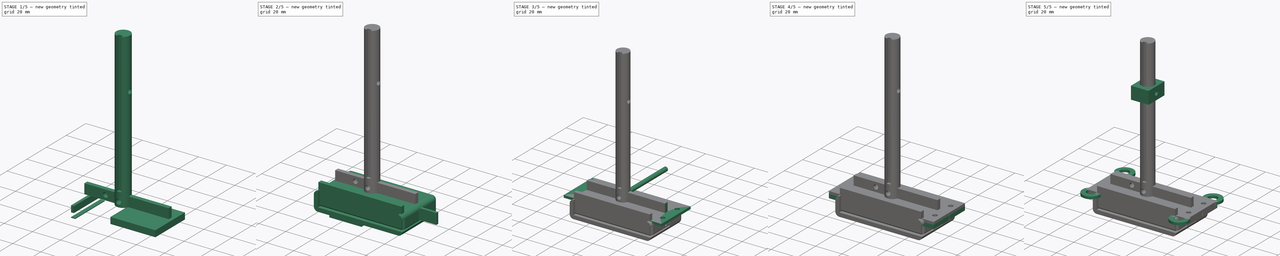
[diagram: build sequence overview — one tinted view per stage of 5, left to right]
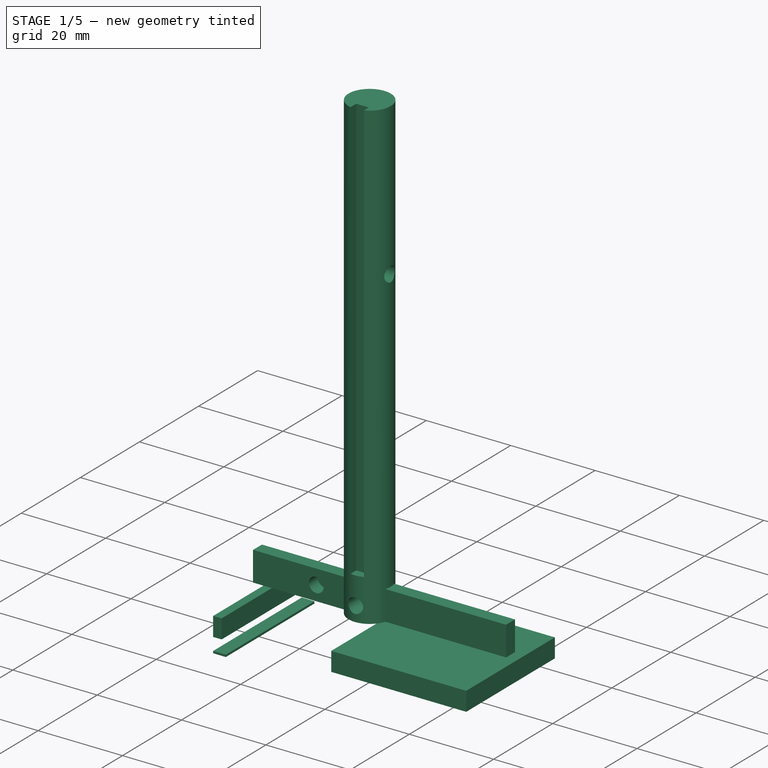
[diagram: stage 1 of 5 — iso view after this stage's code; geometry added in this stage tinted green]
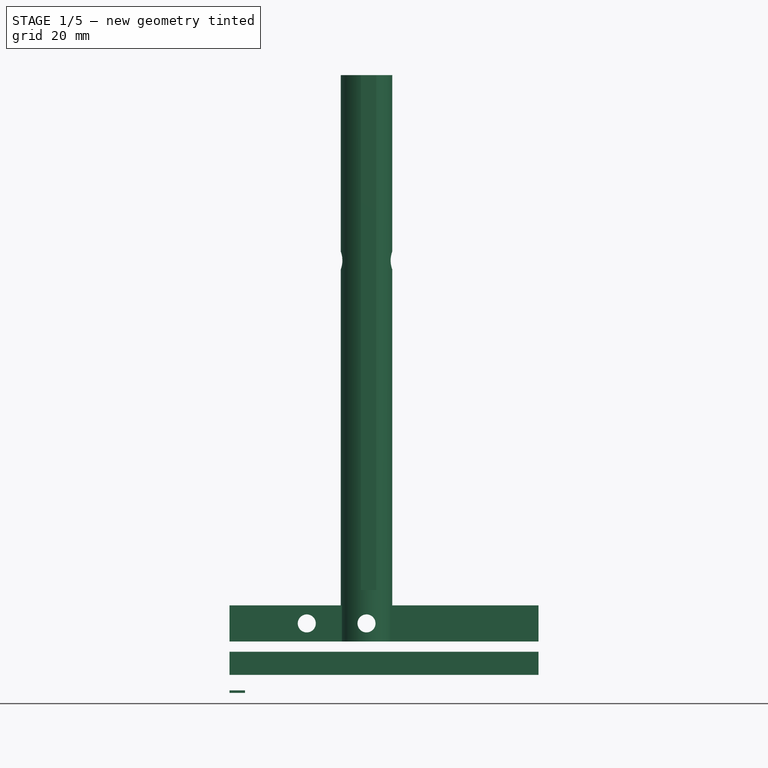
[diagram: stage 1 of 5 — front view after this stage's code; geometry added in this stage tinted green]
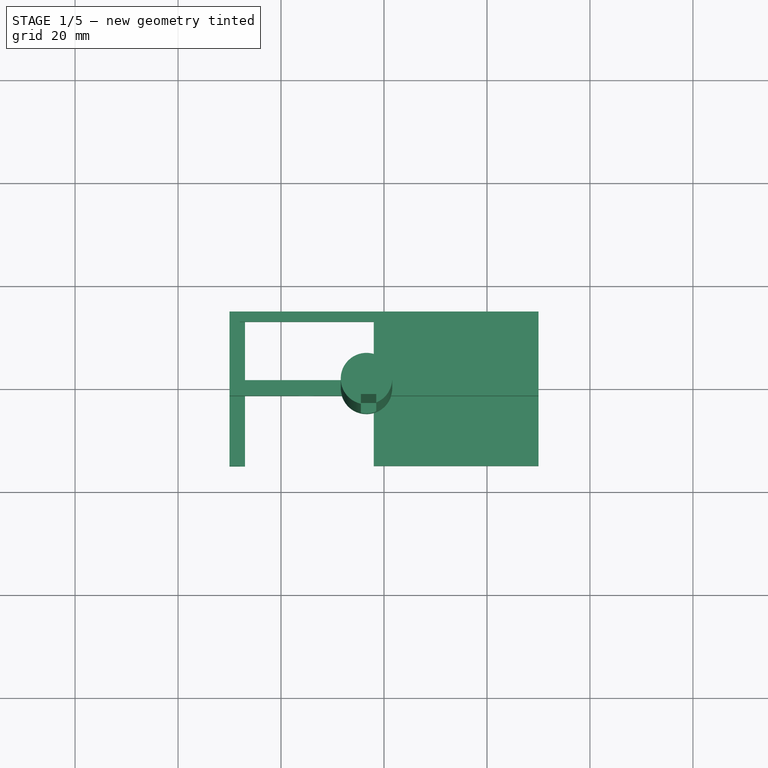
[diagram: stage 1 of 5 — top view after this stage's code; geometry added in this stage tinted green]
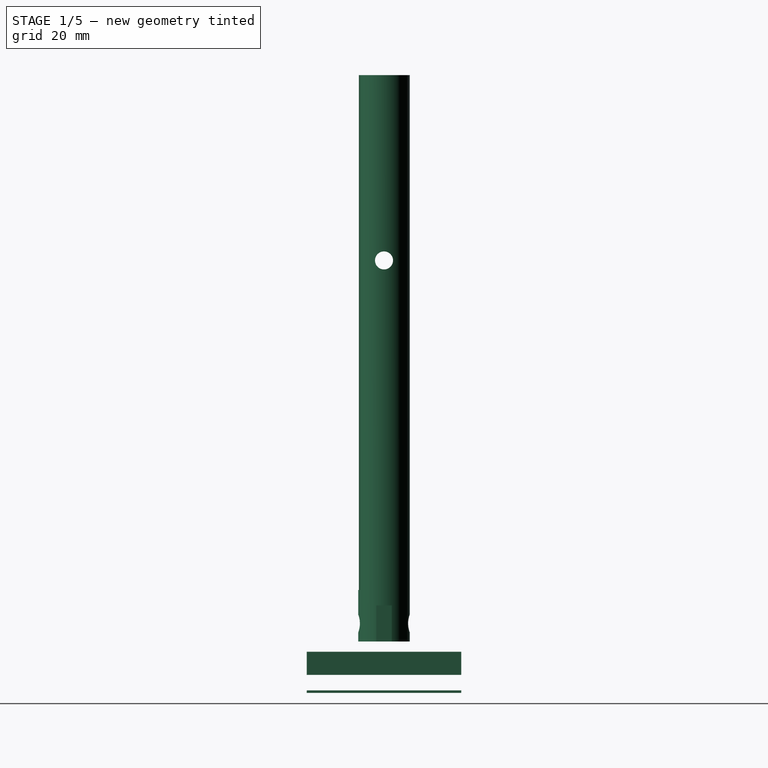
[diagram: stage 1 of 5 — right view after this stage's code; geometry added in this stage tinted green]
FCSTD DOCUMENT  (FreeCAD 0.18R16131 (Git))
Label: SetupSource
License: All rights reserved
LicenseURL: http://en.wikipedia.org/wiki/All_rights_reserved
objects: Sketcher::SketchObject×51, PartDesign::Pad×49, PartDesign::Body×49, Part::Cut×30, Part::MultiFuse×10, PartDesign::Thickness×3
note: 241 computed .brp shape members not serialized (recipe doc carries the construction recipe); baked Part::Feature solids carry a one-line shape summary decoded from their .brp

FEATURE [PartDesign::Body] Body015
  Group = -> [Sketch014,Pad014]
  Origin = -> Origin015
  Tip = -> Pad014
FEATURE [Sketcher::SketchObject] Sketch027
  MapMode = 5
  Support = -> [XY_Plane027]
  sketch-geometry (1):
    g0: Circle CenterX=0 CenterY=0 CenterZ=0 NormalX=0 NormalY=0 NormalZ=1 AngleXU=0 Radius=5
  constraints (3):
    c: Radius(g0) = 5
    c: DistanceX(g0) = 0
    c: DistanceY(g0) = 0
FEATURE [PartDesign::Pad] Pad027
  Length = 110
  Length2 = 100
  Profile = -> Sketch027
  Type = 0
FEATURE [Sketcher::SketchObject] Sketch030
  MapMode = 5
  Support = -> [XY_Plane030]
  sketch-geometry (4):
    g0: LineSegment StartX=-32 StartY=1.5 StartZ=0 EndX=32 EndY=1.5 EndZ=0
    g1: LineSegment StartX=32 StartY=1.5 StartZ=0 EndX=32 EndY=-1.5 EndZ=0
    g2: LineSegment StartX=32 StartY=-1.5 StartZ=0 EndX=-32 EndY=-1.5 EndZ=0
    g3: LineSegment StartX=-32 StartY=-1.5 StartZ=0 EndX=-32 EndY=1.5 EndZ=0
  constraints (12):
    c: Coincident(g0,g1)
    c: Coincident(g1,g2)
    c: Coincident(g2,g3)
    c: Coincident(g3,g0)
    c: Horizontal(g0)
    c: Horizontal(g2)
    c: Vertical(g1)
    c: Vertical(g3)
    c: DistanceX(g0) = -32
    c: DistanceY(g0) = 1.5
    c: DistanceX(g1) = 32
    c: DistanceY(g1) = -1.5
FEATURE [PartDesign::Pad] Pad030
  Length = 7
  Length2 = 100
  Profile = -> Sketch030
  Type = 0
FEATURE [PartDesign::Body] Body030
  Group = -> [Sketch030,Pad030]
  Origin = -> Origin030
  Placement = pos=(0,0,10) rot=(0,0,1;0rad)
  Tip = -> Pad030
FEATURE [Part::Cut] Cut013
  Base = -> Body027
  Placement = pos=(-3.4,0,0) rot=(0,0,1;0rad)
  Tool = -> Body030
FEATURE [Sketcher::SketchObject] Sketch031
  MapMode = 5
  Placement = pos=(0,0,0) rot=(1,0,0;1.5708rad)
  Support = -> [XZ_Plane031]
  sketch-geometry (1):
    g0: Circle CenterX=-3.4 CenterY=13.5 CenterZ=0 NormalX=0 NormalY=0 NormalZ=1 AngleXU=0 Radius=1.75
  constraints (3):
    c: DistanceX(g0) = -3.4
    c: DistanceY(g0) = 13.5
    c: Radius(g0) = 1.75
FEATURE [PartDesign::Pad] Pad031
  Length = 50
  Length2 = 100
  Placement = pos=(0,0,0) rot=(1,0,0;1.5708rad)
  Profile = -> Sketch031
  Reversed = true
  Type = 0
FEATURE [Part::Cut] Cut015
  Base = -> Cut013
  Tool = -> Body031
FEATURE [PartDesign::Body] Body034
  Group = -> [Sketch034,Pad034]
  Origin = -> Origin034
  Placement = pos=(10,0,0) rot=(0,0,1;0rad)
  Tip = -> Pad034
FEATURE [Sketcher::SketchObject] Sketch035
  MapMode = 5
  Placement = pos=(0,0,0) rot=(0.57735,0.57735,0.57735;2.0944rad)
  Support = -> [YZ_Plane035]
  sketch-geometry (1):
    g0: Circle CenterX=0 CenterY=84 CenterZ=0 NormalX=0 NormalY=0 NormalZ=1 AngleXU=0 Radius=1.75
  constraints (3):
    c: Radius(g0) = 1.75
    c: DistanceX(g0) = 0
    c: DistanceY(g0) = 84
FEATURE [PartDesign::Pad] Pad035
  Length = 50
  Length2 = 100
  Placement = pos=(0,0,0) rot=(0.57735,0.57735,0.57735;2.0944rad)
  Profile = -> Sketch035
  Reversed = true
  Type = 0
FEATURE [Part::Cut] Cut018  label="Axis"
  Base = -> Cut015
  Tool = -> Body035
FEATURE [Sketcher::SketchObject] Sketch058
  MapMode = 5
  Support = -> [XY_Plane058]
  sketch-geometry (4):
    g0: LineSegment StartX=-30 StartY=15 StartZ=0 EndX=30 EndY=15 EndZ=0
    g1: LineSegment StartX=30 StartY=15 StartZ=0 EndX=30 EndY=-15 EndZ=0
    g2: LineSegment StartX=30 StartY=-15 StartZ=0 EndX=-30 EndY=-15 EndZ=0
    g3: LineSegment StartX=-30 StartY=-15 StartZ=0 EndX=-30 EndY=15 EndZ=0
  constraints (12):
    c: Coincident(g0,g1)
    c: Coincident(g1,g2)
    c: Coincident(g2,g3)
    c: Coincident(g3,g0)
    c: Horizontal(g0)
    c: Horizontal(g2)
    c: Vertical(g1)
    c: Vertical(g3)
    c: DistanceX(g0) = -30
    c: DistanceY(g0) = 15
    c: DistanceX(g1) = 30
    c: DistanceY(g1) = -15
FEATURE [PartDesign::Pad] Pad058
  Length = 4.5
  Length2 = 100
  Profile = -> Sketch058
  Type = 0
FEATURE [PartDesign::Body] Body058
  Group = -> [Sketch058,Pad058]
  Origin = -> Origin058
  Placement = pos=(0,0,3.5) rot=(0,0,1;0rad)
  Tip = -> Pad058
FEATURE [Sketcher::SketchObject] Sketch059
  MapMode = 5
  Support = -> [XY_Plane059]
  sketch-geometry (4):
    g0: LineSegment StartX=-28 StartY=13 StartZ=0 EndX=-2 EndY=13 EndZ=0
    g1: LineSegment StartX=-2 StartY=13 StartZ=0 EndX=-2 EndY=-20 EndZ=0
    g2: LineSegment StartX=-2 StartY=-20 StartZ=0 EndX=-28 EndY=-20 EndZ=0
    g3: LineSegment StartX=-28 StartY=-20 StartZ=0 EndX=-28 EndY=13 EndZ=0
  constraints (12):
    c: Coincident(g0,g1)
    c: Coincident(g1,g2)
    c: Coincident(g2,g3)
    c: Coincident(g3,g0)
    c: Horizontal(g0)
    c: Horizontal(g2)
    c: Vertical(g1)
    c: Vertical(g3)
    c: DistanceX(g0) = -28
    c: DistanceY(g0) = 13
    c: DistanceX(g1) = -2
    c: DistanceY(g1) = -20
FEATURE [PartDesign::Pad] Pad059
  Length = 4.5
  Length2 = 100
  Profile = -> Sketch059
  Type = 0
FEATURE [PartDesign::Body] Body059
  Group = -> [Sketch059,Pad059]
  Origin = -> Origin059
  Placement = pos=(0,0,3.5) rot=(0,0,1;0rad)
  Tip = -> Pad059
FEATURE [Part::Cut] Cut035
  Base = -> Body058
  Tool = -> Body059
FEATURE [Sketcher::SketchObject] Sketch060
  MapMode = 5
  Support = -> [XY_Plane060]
  sketch-geometry (4):
    g0: LineSegment StartX=-30 StartY=1.5 StartZ=0 EndX=30 EndY=1.5 EndZ=0
    g1: LineSegment StartX=30 StartY=1.5 StartZ=0 EndX=30 EndY=-1.5 EndZ=0
    g2: LineSegment StartX=30 StartY=-1.5 StartZ=0 EndX=-30 EndY=-1.5 EndZ=0
    g3: LineSegment StartX=-30 StartY=-1.5 StartZ=0 EndX=-30 EndY=1.5 EndZ=0
  constraints (12):
    c: Coincident(g0,g1)
    c: Coincident(g1,g2)
    c: Coincident(g2,g3)
    c: Coincident(g3,g0)
    c: Horizontal(g0)
    c: Horizontal(g2)
    c: Vertical(g1)
    c: Vertical(g3)
    c: DistanceX(g0) = -30
    c: DistanceY(g0) = 1.5
    c: DistanceX(g1) = 30
    c: DistanceY(g1) = -1.5
FEATURE [PartDesign::Pad] Pad060
  Length = 7
  Length2 = 100
  Profile = -> Sketch060
  Type = 0
FEATURE [PartDesign::Body] Body060
  Group = -> [Sketch060,Pad060]
  Origin = -> Origin060
  Placement = pos=(0,0,10) rot=(0,0,1;0rad)
  Tip = -> Pad060
FEATURE [Sketcher::SketchObject] Sketch061
  MapMode = 5
  Placement = pos=(0,0,0) rot=(1,0,0;1.5708rad)
  Support = -> [XZ_Plane061]
  sketch-geometry (1):
    g0: Circle CenterX=-3.4 CenterY=13.5 CenterZ=0 NormalX=0 NormalY=0 NormalZ=1 AngleXU=0 Radius=1.75
  constraints (3):
    c: DistanceX(g0) = -3.4
    c: DistanceY(g0) = 13.5
    c: Radius(g0) = 1.75
FEATURE [PartDesign::Pad] Pad061
  Length = 50
  Length2 = 100
  Placement = pos=(0,0,0) rot=(1,0,0;1.5708rad)
  Profile = -> Sketch061
  Reversed = true
  Type = 0
FEATURE [PartDesign::Body] Body061
  Group = -> [Sketch061,Pad061]
  Origin = -> Origin061
  Placement = pos=(0,-10,0) rot=(0,0,1;0rad)
  Tip = -> Pad061
FEATURE [Sketcher::SketchObject] Sketch062
  MapMode = 5
  Placement = pos=(0,0,0) rot=(1,0,0;1.5708rad)
  Support = -> [XZ_Plane062]
  sketch-geometry (1):
    g0: Circle CenterX=-3.4 CenterY=13.5 CenterZ=0 NormalX=0 NormalY=0 NormalZ=1 AngleXU=0 Radius=1.75
  constraints (3):
    c: DistanceX(g0) = -3.4
    c: DistanceY(g0) = 13.5
    c: Radius(g0) = 1.75
FEATURE [PartDesign::Pad] Pad062
  Length = 50
  Length2 = 100
  Placement = pos=(0,0,0) rot=(1,0,0;1.5708rad)
  Profile = -> Sketch062
  Reversed = true
  Type = 0
FEATURE [PartDesign::Body] Body062
  Group = -> [Sketch062,Pad062]
  Origin = -> Origin062
  Placement = pos=(-11.6,-10,0) rot=(0,0,1;0rad)
  Tip = -> Pad062
FEATURE [Part::Cut] Cut036
  Base = -> Body060
  Tool = -> Body061
FEATURE [Part::Cut] Cut037
  Base = -> Cut036
  Tool = -> Body062
FEATURE [Sketcher::SketchObject] Sketch065
  MapMode = 5
  Support = -> [XY_Plane065]
  sketch-geometry (4):
    g0: LineSegment StartX=-30 StartY=15 StartZ=0 EndX=-27 EndY=15 EndZ=0
    g1: LineSegment StartX=-27 StartY=15 StartZ=0 EndX=-27 EndY=-15 EndZ=0
    g2: LineSegment StartX=-27 StartY=-15 StartZ=0 EndX=-30 EndY=-15 EndZ=0
    g3: LineSegment StartX=-30 StartY=-15 StartZ=0 EndX=-30 EndY=15 EndZ=0
  constraints (12):
    c: Coincident(g0,g1)
    c: Coincident(g1,g2)
    c: Coincident(g2,g3)
    c: Coincident(g3,g0)
    c: Horizontal(g0)
    c: Horizontal(g2)
    c: Vertical(g1)
    c: Vertical(g3)
    c: DistanceX(g0) = -27
    c: DistanceY(g0) = 15
    c: DistanceX(g2) = -30
    c: DistanceY(g2) = -15
FEATURE [PartDesign::Pad] Pad065
  Length = 0.5
  Length2 = 100
  Profile = -> Sketch065
  Type = 0
FEATURE [Sketcher::SketchObject] Sketch066
  MapMode = 5
  Support = -> [XY_Plane066]
  sketch-geometry (4):
    g0: LineSegment StartX=-1.5 StartY=-3 StartZ=0 EndX=-4.5 EndY=-3 EndZ=0
    g1: LineSegment StartX=-4.5 StartY=-3 StartZ=0 EndX=-4.5 EndY=-5 EndZ=0
    g2: LineSegment StartX=-4.5 StartY=-5 StartZ=0 EndX=-1.5 EndY=-5 EndZ=0
    g3: LineSegment StartX=-1.5 StartY=-5 StartZ=0 EndX=-1.5 EndY=-3 EndZ=0
  constraints (12):
    c: Coincident(g0,g1)
    c: Coincident(g1,g2)
    c: Coincident(g2,g3)
    c: Coincident(g3,g0)
    c: Horizontal(g0)
    c: Horizontal(g2)
    c: Vertical(g1)
    c: Vertical(g3)
    c: DistanceX(g0) = -1.5
    c: DistanceY(g0) = -3
    c: DistanceX(g1) = -4.5
    c: DistanceY(g1) = -5
FEATURE [PartDesign::Pad] Pad066
  Length = 100
  Length2 = 100
  Profile = -> Sketch066
  Type = 0
FEATURE [PartDesign::Body] Body066
  Group = -> [Sketch066,Pad066]
  Origin = -> Origin066
  Placement = pos=(0,0,20) rot=(0,0,1;0rad)
  Tip = -> Pad066
FEATURE [Part::Cut] Cut038
  Base = -> Cut018
  Tool = -> Body066
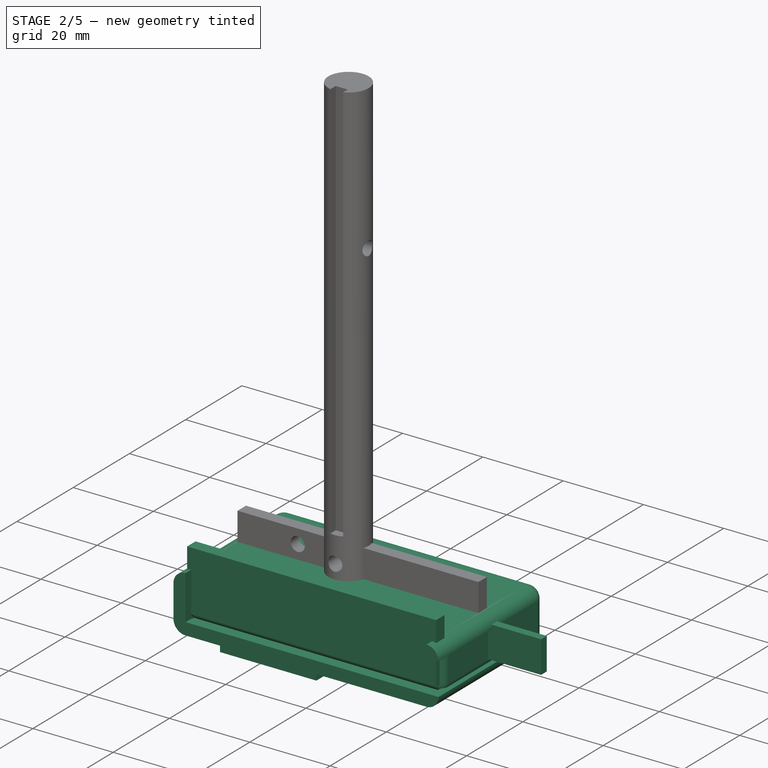
[diagram: stage 2 of 5 — iso view after this stage's code; geometry added in this stage tinted green]
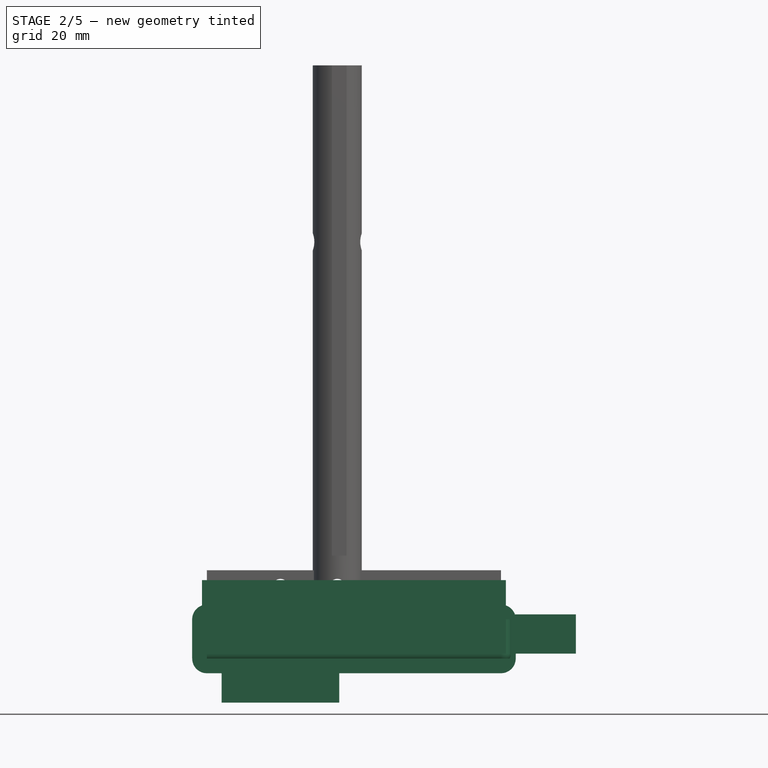
[diagram: stage 2 of 5 — front view after this stage's code; geometry added in this stage tinted green]
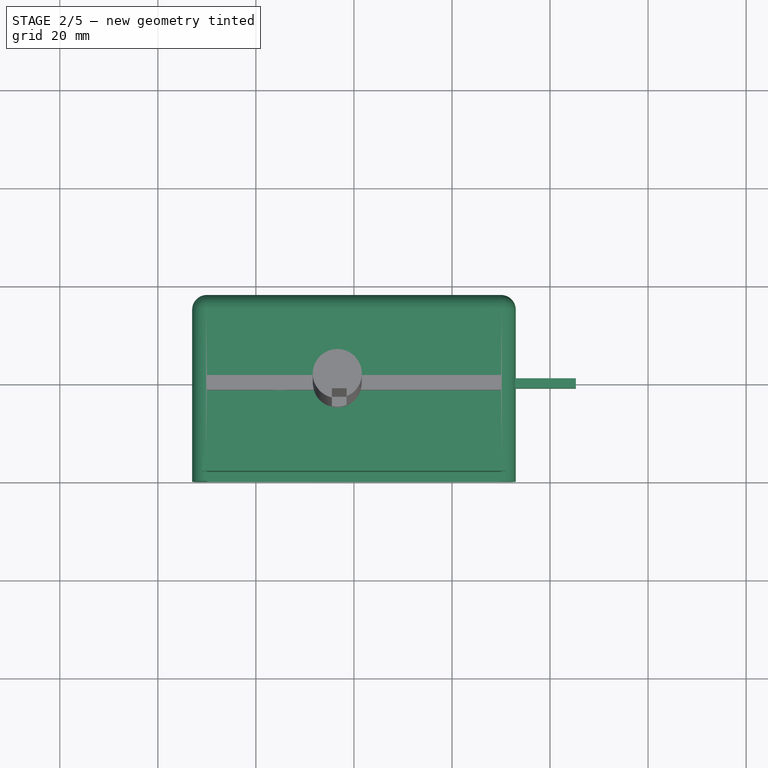
[diagram: stage 2 of 5 — top view after this stage's code; geometry added in this stage tinted green]
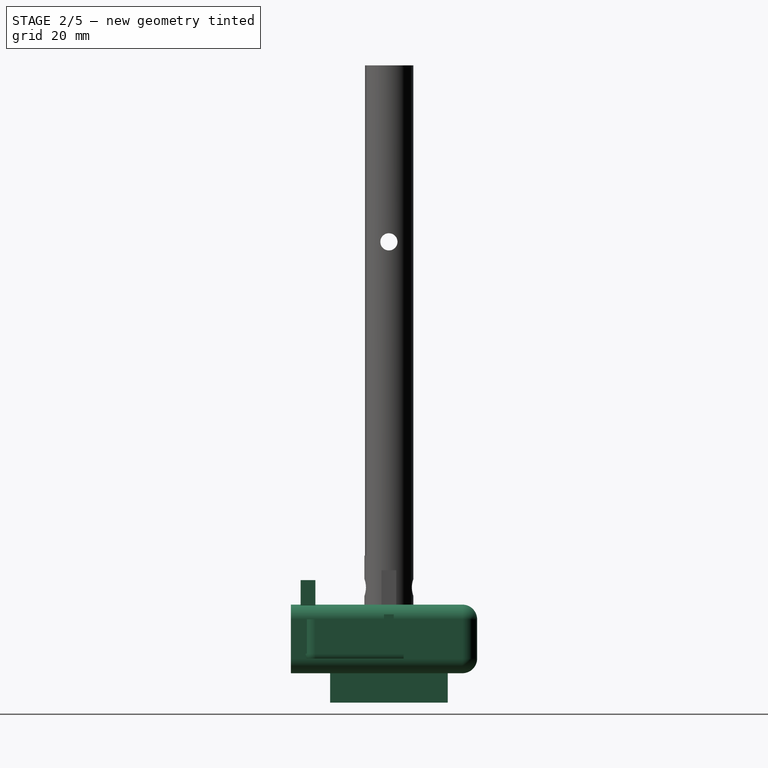
[diagram: stage 2 of 5 — right view after this stage's code; geometry added in this stage tinted green]
FEATURE [Sketcher::SketchObject] CopySketch003
  sketch-geometry (4):
    g0: LineSegment StartX=-30 StartY=15 StartZ=0 EndX=30 EndY=15 EndZ=0
    g1: LineSegment StartX=30 StartY=15 StartZ=0 EndX=30 EndY=-15 EndZ=0
    g2: LineSegment StartX=30 StartY=-15 StartZ=0 EndX=-30 EndY=-15 EndZ=0
    g3: LineSegment StartX=-30 StartY=-15 StartZ=0 EndX=-30 EndY=15 EndZ=0
  constraints (12):
    c: Coincident(g0,g1)
    c: Coincident(g1,g2)
    c: Coincident(g2,g3)
    c: Coincident(g3,g0)
    c: Horizontal(g0)
    c: Horizontal(g2)
    c: Vertical(g1)
    c: Vertical(g3)
    c: DistanceX(g0) = -30
    c: DistanceY(g0) = 15
    c: DistanceX(g1) = 30
    c: DistanceY(g1) = -15
FEATURE [PartDesign::Pad] Pad050
  Length = 8
  Length2 = 100
  Profile = -> CopySketch003
  Type = 0
FEATURE [Sketcher::SketchObject] Sketch051
  MapMode = 5
  Support = -> [XY_Plane052]
  sketch-geometry (4):
    g0: LineSegment StartX=-27 StartY=12 StartZ=0 EndX=-3 EndY=12 EndZ=0
    g1: LineSegment StartX=-3 StartY=12 StartZ=0 EndX=-3 EndY=-12 EndZ=0
    g2: LineSegment StartX=-3 StartY=-12 StartZ=0 EndX=-27 EndY=-12 EndZ=0
    g3: LineSegment StartX=-27 StartY=-12 StartZ=0 EndX=-27 EndY=12 EndZ=0
  constraints (12):
    c: Coincident(g0,g1)
    c: Coincident(g1,g2)
    c: Coincident(g2,g3)
    c: Coincident(g3,g0)
    c: Horizontal(g0)
    c: Horizontal(g2)
    c: Vertical(g1)
    c: Vertical(g3)
    c: DistanceX(g0) = -27
    c: DistanceY(g0) = 12
    c: DistanceX(g1) = -3
    c: DistanceY(g1) = -12
FEATURE [PartDesign::Pad] Pad051
  Length = 10
  Length2 = 100
  Profile = -> Sketch051
  Reversed = true
  Type = 0
FEATURE [Sketcher::SketchObject] Sketch052
  MapMode = 5
  Support = -> [XY_Plane051]
  sketch-geometry (4):
    g0: LineSegment StartX=30 StartY=1 StartZ=0 EndX=45.26 EndY=1 EndZ=0
    g1: LineSegment StartX=45.26 StartY=1 StartZ=0 EndX=45.26 EndY=-1 EndZ=0
    g2: LineSegment StartX=45.26 StartY=-1 StartZ=0 EndX=30 EndY=-1 EndZ=0
    g3: LineSegment StartX=30 StartY=-1 StartZ=0 EndX=30 EndY=1 EndZ=0
  constraints (12):
    c: Coincident(g0,g1)
    c: Coincident(g1,g2)
    c: Coincident(g2,g3)
    c: Coincident(g3,g0)
    c: Horizontal(g0)
    c: Horizontal(g2)
    c: Vertical(g1)
    c: Vertical(g3)
    c: DistanceX(g0) = 30
    c: DistanceY(g0) = 1
    c: DistanceX(g1) = 45.26
    c: DistanceY(g1) = -1
FEATURE [PartDesign::Body] Body052
  Group = -> [Sketch051,Pad051]
  Origin = -> Origin050
  Tip = -> Pad051
FEATURE [PartDesign::Pad] Pad052
  Length = 8
  Length2 = 100
  Profile = -> Sketch052
  Type = 0
FEATURE [PartDesign::Body] Body051
  Group = -> [Sketch052,Pad052]
  Origin = -> Origin051
  Tip = -> Pad052
FEATURE [PartDesign::Thickness] Thickness001
  Base = -> Pad050 [Face6]
  BaseFeature = -> Pad050
  Join = 0
  Mode = 0
  Value = 2
FEATURE [Sketcher::SketchObject] Sketch053
  MapMode = 5
  Support = -> [XY_Plane053]
  sketch-geometry (4):
    g0: LineSegment StartX=-30 StartY=15 StartZ=0 EndX=30 EndY=15 EndZ=0
    g1: LineSegment StartX=30 StartY=15 StartZ=0 EndX=30 EndY=-20 EndZ=0
    g2: LineSegment StartX=30 StartY=-20 StartZ=0 EndX=-30 EndY=-20 EndZ=0
    g3: LineSegment StartX=-30 StartY=-20 StartZ=0 EndX=-30 EndY=15 EndZ=0
  constraints (12):
    c: Coincident(g0,g1)
    c: Coincident(g1,g2)
    c: Coincident(g2,g3)
    c: Coincident(g3,g0)
    c: Horizontal(g0)
    c: Horizontal(g2)
    c: Vertical(g1)
    c: Vertical(g3)
    c: DistanceX(g0) = -30
    c: DistanceY(g0) = 15
    c: DistanceX(g1) = 30
    c: DistanceY(g1) = -20
FEATURE [PartDesign::Pad] Pad053
  Length = 8
  Length2 = 100
  Profile = -> Sketch053
  Type = 0
FEATURE [PartDesign::Thickness] Thickness002
  Base = -> Pad053 [Face3]
  BaseFeature = -> Pad053
  Join = 0
  Mode = 0
  Value = 3
FEATURE [PartDesign::Body] Body053
  Group = -> [Sketch053,Pad053,Thickness002]
  Origin = -> Origin053
  Tip = -> Thickness002
FEATURE [Sketcher::SketchObject] Sketch054
  MapMode = 5
  Support = -> [XY_Plane054]
  sketch-geometry (4):
    g0: LineSegment StartX=-30 StartY=-15 StartZ=0 EndX=30 EndY=-15 EndZ=0
    g1: LineSegment StartX=30 StartY=-15 StartZ=0 EndX=30 EndY=-20 EndZ=0
    g2: LineSegment StartX=30 StartY=-20 StartZ=0 EndX=-30 EndY=-20 EndZ=0
    g3: LineSegment StartX=-30 StartY=-20 StartZ=0 EndX=-30 EndY=-15 EndZ=0
  constraints (12):
    c: Coincident(g0,g1)
    c: Coincident(g1,g2)
    c: Coincident(g2,g3)
    c: Coincident(g3,g0)
    c: Horizontal(g0)
    c: Horizontal(g2)
    c: Vertical(g1)
    c: Vertical(g3)
    c: DistanceX(g1) = 30
    c: DistanceY(g1) = -20
    c: DistanceX(g0) = -30
    c: DistanceY(g0) = -15
FEATURE [PartDesign::Pad] Pad054
  Length = 15
  Length2 = 100
  Profile = -> Sketch054
  Type = 0
FEATURE [PartDesign::Body] Body054
  Group = -> [Sketch054,Pad054]
  Origin = -> Origin054
  Tip = -> Pad054
FEATURE [Part::Cut] Cut032
  Base = -> Body053
  Tool = -> Body054
FEATURE [Sketcher::SketchObject] Sketch055
  MapMode = 5
  Support = -> [XY_Plane055]
  sketch-geometry (4):
    g0: LineSegment StartX=-31 StartY=-15 StartZ=0 EndX=31 EndY=-15 EndZ=0
    g1: LineSegment StartX=31 StartY=-15 StartZ=0 EndX=31 EndY=-18 EndZ=0
    g2: LineSegment StartX=31 StartY=-18 StartZ=0 EndX=-31 EndY=-18 EndZ=0
    g3: LineSegment StartX=-31 StartY=-18 StartZ=0 EndX=-31 EndY=-15 EndZ=0
  constraints (12):
    c: Coincident(g0,g1)
    c: Coincident(g1,g2)
    c: Coincident(g2,g3)
    c: Coincident(g3,g0)
    c: Horizontal(g0)
    c: Horizontal(g2)
    c: Vertical(g1)
    c: Vertical(g3)
    c: DistanceX(g0) = -31
    c: DistanceY(g0) = -15
    c: DistanceX(g1) = 31
    c: DistanceY(g1) = -18
FEATURE [PartDesign::Pad] Pad055
  Length = 15
  Length2 = 100
  Profile = -> Sketch055
  Type = 0
FEATURE [PartDesign::Body] Body055
  Group = -> [Sketch055,Pad055]
  Origin = -> Origin055
  Placement = pos=(0,0,-1) rot=(0,0,1;0rad)
  Tip = -> Pad055
FEATURE [Part::Cut] Cut033
  Base = -> Cut032
  Tool = -> Body055
FEATURE [Sketcher::SketchObject] Sketch056
  MapMode = 5
  Support = -> [XY_Plane056]
  sketch-geometry (4):
    g0: LineSegment StartX=-31 StartY=-15 StartZ=0 EndX=31 EndY=-15 EndZ=0
    g1: LineSegment StartX=31 StartY=-15 StartZ=0 EndX=31 EndY=-18 EndZ=0
    g2: LineSegment StartX=31 StartY=-18 StartZ=0 EndX=-31 EndY=-18 EndZ=0
    g3: LineSegment StartX=-31 StartY=-18 StartZ=0 EndX=-31 EndY=-15 EndZ=0
  constraints (12):
    c: Coincident(g0,g1)
    c: Coincident(g1,g2)
    c: Coincident(g2,g3)
    c: Coincident(g3,g0)
    c: Horizontal(g0)
    c: Horizontal(g2)
    c: Vertical(g1)
    c: Vertical(g3)
    c: DistanceX(g0) = -31
    c: DistanceY(g0) = -15
    c: DistanceX(g1) = 31
    c: DistanceY(g1) = -18
FEATURE [PartDesign::Pad] Pad056
  Length = 15
  Length2 = 100
  Profile = -> Sketch056
  Type = 0
FEATURE [PartDesign::Body] Body056
  Group = -> [Sketch056,Pad056]
  Origin = -> Origin056
  Placement = pos=(0,0,-1) rot=(0,0,1;0rad)
  Tip = -> Pad056
FEATURE [Sketcher::SketchObject] Sketch057
  MapMode = 5
  Support = -> [XY_Plane057]
  sketch-geometry (4):
    g0: LineSegment StartX=30 StartY=3 StartZ=0 EndX=35 EndY=3 EndZ=0
    g1: LineSegment StartX=35 StartY=3 StartZ=0 EndX=35 EndY=-20 EndZ=0
    g2: LineSegment StartX=35 StartY=-20 StartZ=0 EndX=30 EndY=-20 EndZ=0
    g3: LineSegment StartX=30 StartY=-20 StartZ=0 EndX=30 EndY=3 EndZ=0
  constraints (12):
    c: Coincident(g0,g1)
    c: Coincident(g1,g2)
    c: Coincident(g2,g3)
    c: Coincident(g3,g0)
    c: Horizontal(g0)
    c: Horizontal(g2)
    c: Vertical(g1)
    c: Vertical(g3)
    c: DistanceX(g0) = 30
    c: DistanceY(g0) = 3
    c: DistanceX(g1) = 35
    c: DistanceY(g1) = -20
FEATURE [PartDesign::Pad] Pad057
  Length = 8
  Length2 = 100
  Profile = -> Sketch057
  Type = 0
FEATURE [PartDesign::Body] Body057
  Group = -> [Sketch057,Pad057]
  Origin = -> Origin057
  Tip = -> Pad057
FEATURE [Part::Cut] Cut034
  Base = -> Cut033
  Tool = -> Body057
FEATURE [Part::MultiFuse] Fusion006
  Placement = pos=(0,0,-1) rot=(0,0,1;0rad)
  Shapes = -> [Cut034,Cut035]
FEATURE [Part::MultiFuse] Fusion007
  Shapes = -> [Cut037,Fusion006]
FEATURE [Sketcher::SketchObject] Sketch063
  MapMode = 5
  Support = -> [XY_Plane064]
  sketch-geometry (4):
    g0: LineSegment StartX=-1 StartY=-14 StartZ=0 EndX=-1 EndY=14 EndZ=0
    g1: LineSegment StartX=-1 StartY=14 StartZ=0 EndX=28 EndY=0 EndZ=0
    g2: LineSegment StartX=28 StartY=0 StartZ=0 EndX=-1 EndY=-14 EndZ=0
    g3: Circle [constr] CenterX=9.45855 CenterY=1.37158 CenterZ=0 NormalX=0 NormalY=0 NormalZ=1 AngleXU=0 Radius=18.5921
  constraints (9):
    c: Coincident(g0,g1)
    c: Coincident(g1,g2)
    c: Coincident(g2,g0)
    c: DistanceX(g0) = -1
    c: DistanceY(g0) = -14
    c: DistanceX(g1) = 28
    c: DistanceY(g1) = 0
    c: DistanceX(g0) = -1
    c: Equal(g1,g2)
FEATURE [PartDesign::Pad] Pad063
  Length = 1.5
  Length2 = 100
  Profile = -> Sketch063
  Type = 0
FEATURE [Sketcher::SketchObject] Sketch064
  MapMode = 5
  Support = -> [XY_Plane063]
  sketch-geometry (4):
    g0: LineSegment StartX=-29 StartY=14 StartZ=0 EndX=-1 EndY=14 EndZ=0
    g1: LineSegment StartX=-1 StartY=14 StartZ=0 EndX=-1 EndY=-14 EndZ=0
    g2: LineSegment StartX=-1 StartY=-14 StartZ=0 EndX=-29 EndY=-14 EndZ=0
    g3: LineSegment StartX=-29 StartY=-14 StartZ=0 EndX=-29 EndY=14 EndZ=0
  constraints (12):
    c: Coincident(g0,g1)
    c: Coincident(g1,g2)
    c: Coincident(g2,g3)
    c: Coincident(g3,g0)
    c: Horizontal(g0)
    c: Horizontal(g2)
    c: Vertical(g1)
    c: Vertical(g3)
    c: DistanceX(g0) = -29
    c: DistanceY(g0) = 14
    c: DistanceX(g1) = -1
    c: DistanceY(g1) = -14
FEATURE [PartDesign::Pad] Pad064
  Length = 0.5
  Length2 = 100
  Profile = -> Sketch064
  Type = 0
FEATURE [PartDesign::Body] Body063
  Group = -> [Sketch063,Pad063]
  Origin = -> Origin064
  Tip = -> Pad063
FEATURE [PartDesign::Body] Body064
  Group = -> [Sketch064,Pad064]
  Origin = -> Origin063
  Placement = pos=(0,0,0.5) rot=(0,0,1;0rad)
  Tip = -> Pad064
FEATURE [Part::MultiFuse] Fusion008  label="Scinti001"
  Placement = pos=(0,0,-1) rot=(0,0,1;0rad)
  Shapes = -> [Body064,Body063]
FEATURE [PartDesign::Body] Body065
  Group = -> [Sketch065,Pad065]
  Origin = -> Origin065
  Placement = pos=(0,0,-1) rot=(0,0,1;0rad)
  Tip = -> Pad065
FEATURE [Part::MultiFuse] Fusion009
  Shapes = -> [Fusion007,Body065]
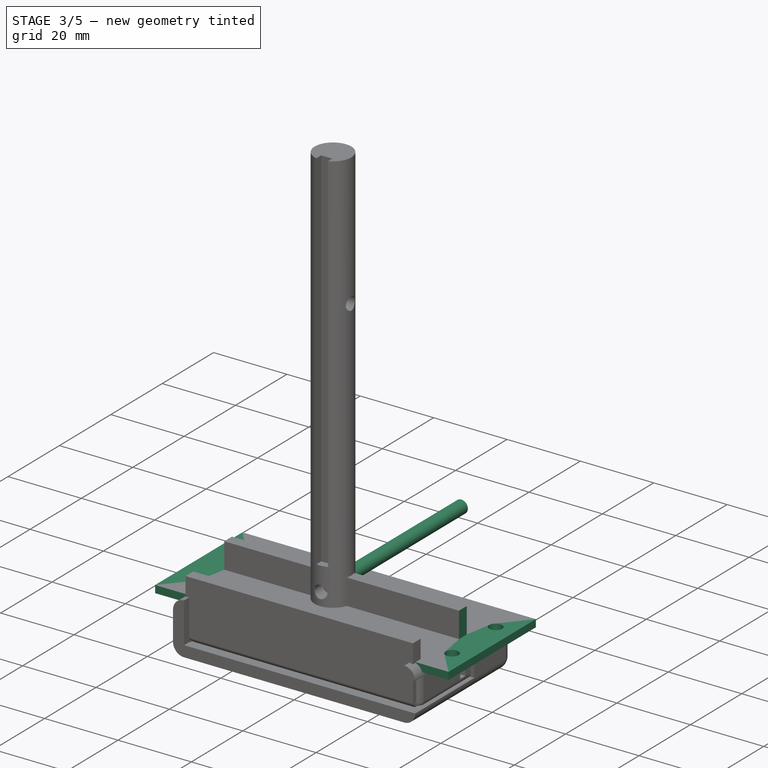
[diagram: stage 3 of 5 — iso view after this stage's code; geometry added in this stage tinted green]
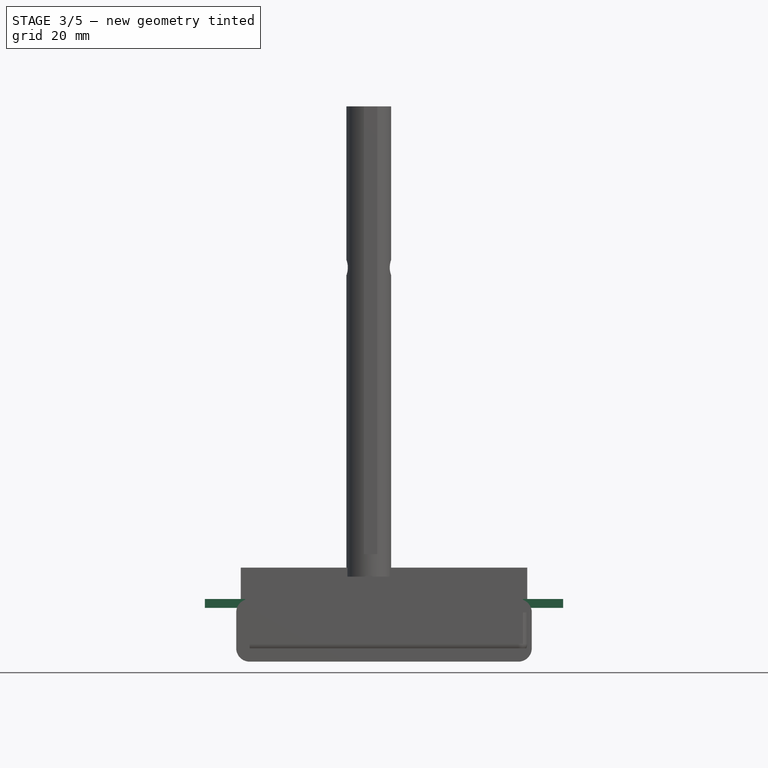
[diagram: stage 3 of 5 — front view after this stage's code; geometry added in this stage tinted green]
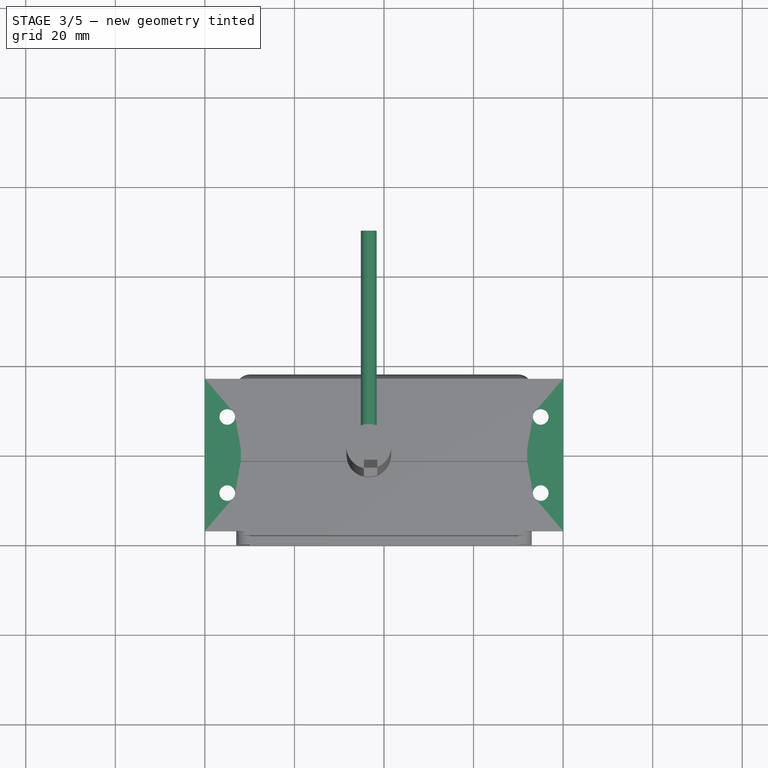
[diagram: stage 3 of 5 — top view after this stage's code; geometry added in this stage tinted green]
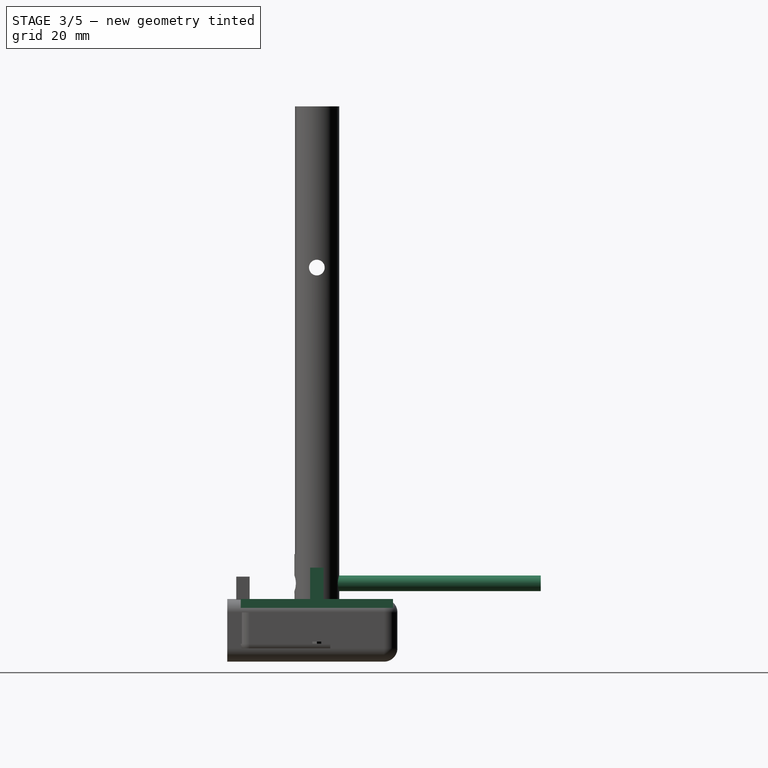
[diagram: stage 3 of 5 — right view after this stage's code; geometry added in this stage tinted green]
FEATURE [Sketcher::SketchObject] CopySketch002
  sketch-geometry (4):
    g0: LineSegment StartX=-30 StartY=15 StartZ=0 EndX=30 EndY=15 EndZ=0
    g1: LineSegment StartX=30 StartY=15 StartZ=0 EndX=30 EndY=-15 EndZ=0
    g2: LineSegment StartX=30 StartY=-15 StartZ=0 EndX=-30 EndY=-15 EndZ=0
    g3: LineSegment StartX=-30 StartY=-15 StartZ=0 EndX=-30 EndY=15 EndZ=0
  constraints (12):
    c: Coincident(g0,g1)
    c: Coincident(g1,g2)
    c: Coincident(g2,g3)
    c: Coincident(g3,g0)
    c: Horizontal(g0)
    c: Horizontal(g2)
    c: Vertical(g1)
    c: Vertical(g3)
    c: DistanceX(g0) = -30
    c: DistanceY(g0) = 15
    c: DistanceX(g1) = 30
    c: DistanceY(g1) = -15
FEATURE [Sketcher::SketchObject] Sketch005
  MapMode = 5
  Support = -> [XY_Plane005]
  sketch-geometry (4):
    g0: LineSegment StartX=-29.5 StartY=14.5 StartZ=0 EndX=29.5 EndY=14.5 EndZ=0
    g1: LineSegment StartX=29.5 StartY=14.5 StartZ=0 EndX=29.5 EndY=-14.5 EndZ=0
    g2: LineSegment StartX=29.5 StartY=-14.5 StartZ=0 EndX=-29.5 EndY=-14.5 EndZ=0
    g3: LineSegment StartX=-29.5 StartY=-14.5 StartZ=0 EndX=-29.5 EndY=14.5 EndZ=0
  constraints (12):
    c: Coincident(g0,g1)
    c: Coincident(g1,g2)
    c: Coincident(g2,g3)
    c: Coincident(g3,g0)
    c: Horizontal(g0)
    c: Horizontal(g2)
    c: Vertical(g1)
    c: Vertical(g3)
    c: DistanceX(g0) = -29.5
    c: DistanceY(g0) = 14.5
    c: DistanceX(g1) = 29.5
    c: DistanceY(g1) = -14.5
FEATURE [PartDesign::Pad] Pad005
  Length = 5
  Length2 = 100
  Profile = -> Sketch005
  Type = 0
FEATURE [PartDesign::Body] Body005
  Group = -> [Sketch005,Pad005]
  Origin = -> Origin005
  Placement = pos=(0,0,3) rot=(0,0,1;0rad)
  Tip = -> Pad005
FEATURE [Sketcher::SketchObject] Sketch006
  MapMode = 5
  Support = -> [XY_Plane006]
  sketch-geometry (4):
    g0: LineSegment StartX=-40 StartY=17 StartZ=0 EndX=40 EndY=17 EndZ=0
    g1: LineSegment StartX=40 StartY=17 StartZ=0 EndX=40 EndY=-17 EndZ=0
    g2: LineSegment StartX=40 StartY=-17 StartZ=0 EndX=-40 EndY=-17 EndZ=0
    g3: LineSegment StartX=-40 StartY=-17 StartZ=0 EndX=-40 EndY=17 EndZ=0
  constraints (12):
    c: Coincident(g0,g1)
    c: Coincident(g1,g2)
    c: Coincident(g2,g3)
    c: Coincident(g3,g0)
    c: Horizontal(g0)
    c: Horizontal(g2)
    c: Vertical(g1)
    c: Vertical(g3)
    c: DistanceX(g0) = -40
    c: DistanceY(g0) = 17
    c: DistanceX(g1) = 40
    c: DistanceY(g1) = -17
FEATURE [PartDesign::Pad] Pad006
  Length = 2
  Length2 = 100
  Profile = -> Sketch006
  Type = 0
FEATURE [PartDesign::Body] Body006
  Group = -> [Sketch006,Pad006]
  Origin = -> Origin006
  Placement = pos=(0,0,8) rot=(0,0,1;0rad)
  Tip = -> Pad006
FEATURE [Sketcher::SketchObject] Sketch007
  MapMode = 5
  Support = -> [XY_Plane007]
  sketch-geometry (4):
    g0: LineSegment StartX=-27.5 StartY=13 StartZ=0 EndX=-2.5 EndY=13 EndZ=0
    g1: LineSegment StartX=-2.5 StartY=13 StartZ=0 EndX=-2.5 EndY=-13 EndZ=0
    g2: LineSegment StartX=-2.5 StartY=-13 StartZ=0 EndX=-27.5 EndY=-13 EndZ=0
    g3: LineSegment StartX=-27.5 StartY=-13 StartZ=0 EndX=-27.5 EndY=13 EndZ=0
  constraints (12):
    c: Coincident(g0,g1)
    c: Coincident(g1,g2)
    c: Coincident(g2,g3)
    c: Coincident(g3,g0)
    c: Horizontal(g0)
    c: Horizontal(g2)
    c: Vertical(g1)
    c: Vertical(g3)
    c: DistanceX(g0) = -27.5
    c: DistanceY(g0) = 13
    c: DistanceX(g1) = -2.5
    c: DistanceY(g1) = -13
FEATURE [PartDesign::Pad] Pad007
  Length = 5.5
  Length2 = 100
  Profile = -> Sketch007
  Type = 0
FEATURE [PartDesign::Body] Body007
  Group = -> [Sketch007,Pad007]
  Origin = -> Origin007
  Placement = pos=(0,0,2.5) rot=(0,0,1;0rad)
  Tip = -> Pad007
FEATURE [Part::Cut] Cut002
  Base = -> Body005
  Tool = -> Body007
FEATURE [Part::MultiFuse] Fusion001
  Shapes = -> [Body006,Cut002]
FEATURE [Sketcher::SketchObject] Sketch008
  MapMode = 5
  Support = -> [XY_Plane008]
  sketch-geometry (4):
    g0: LineSegment StartX=-32 StartY=1.5 StartZ=0 EndX=32 EndY=1.5 EndZ=0
    g1: LineSegment StartX=32 StartY=1.5 StartZ=0 EndX=32 EndY=-1.5 EndZ=0
    g2: LineSegment StartX=32 StartY=-1.5 StartZ=0 EndX=-32 EndY=-1.5 EndZ=0
    g3: LineSegment StartX=-32 StartY=-1.5 StartZ=0 EndX=-32 EndY=1.5 EndZ=0
  constraints (12):
    c: Coincident(g0,g1)
    c: Coincident(g1,g2)
    c: Coincident(g2,g3)
    c: Coincident(g3,g0)
    c: Horizontal(g0)
    c: Horizontal(g2)
    c: Vertical(g1)
    c: Vertical(g3)
    c: DistanceX(g0) = -32
    c: DistanceY(g0) = 1.5
    c: DistanceX(g1) = 32
    c: DistanceY(g1) = -1.5
FEATURE [PartDesign::Pad] Pad008
  Length = 7
  Length2 = 100
  Profile = -> Sketch008
  Type = 0
FEATURE [PartDesign::Body] Body008
  Group = -> [Sketch008,Pad008]
  Origin = -> Origin008
  Placement = pos=(0,0,10) rot=(0,0,1;0rad)
  Tip = -> Pad008
FEATURE [Part::MultiFuse] Fusion002
  Shapes = -> [Fusion001,Body008]
FEATURE [Sketcher::SketchObject] Sketch011
  MapMode = 5
  Support = -> [XY_Plane011]
  sketch-geometry (1):
    g0: Circle CenterX=35 CenterY=8.5 CenterZ=0 NormalX=0 NormalY=0 NormalZ=1 AngleXU=0 Radius=1.75
  constraints (3):
    c: Radius(g0) = 1.75
    c: DistanceX(g0) = 35
    c: DistanceY(g0) = 8.5
FEATURE [PartDesign::Pad] Pad011
  Length = 12
  Length2 = 100
  Profile = -> Sketch011
  Type = 0
FEATURE [PartDesign::Body] Body011
  Group = -> [Sketch011,Pad011]
  Origin = -> Origin011
  Tip = -> Pad011
FEATURE [Sketcher::SketchObject] Sketch012
  MapMode = 5
  Support = -> [XY_Plane012]
  sketch-geometry (1):
    g0: Circle CenterX=35 CenterY=-8.5 CenterZ=0 NormalX=0 NormalY=0 NormalZ=1 AngleXU=0 Radius=1.75
  constraints (3):
    c: Radius(g0) = 1.75
    c: DistanceX(g0) = 35
    c: DistanceY(g0) = -8.5
FEATURE [PartDesign::Pad] Pad012
  Length = 12
  Length2 = 100
  Profile = -> Sketch012
  Type = 0
FEATURE [Sketcher::SketchObject] Sketch014
  MapMode = 5
  Support = -> [XY_Plane015]
  sketch-geometry (1):
    g0: Circle CenterX=-35 CenterY=8.5 CenterZ=0 NormalX=0 NormalY=0 NormalZ=1 AngleXU=0 Radius=1.75
  constraints (3):
    c: Radius(g0) = 1.75
    c: DistanceX(g0) = -35
    c: DistanceY(g0) = 8.5
FEATURE [PartDesign::Pad] Pad014
  Length = 12
  Length2 = 100
  Profile = -> Sketch014
  Type = 0
FEATURE [PartDesign::Body] Body036
  Group = -> [Sketch036,Pad036]
  Origin = -> Origin036
  Tip = -> Pad036
FEATURE [Sketcher::SketchObject] Sketch040
  MapMode = 5
  Support = -> [XY_Plane040]
  sketch-geometry (1):
    g0: Circle CenterX=-35 CenterY=-8.5 CenterZ=0 NormalX=0 NormalY=0 NormalZ=1 AngleXU=0 Radius=1.75
  constraints (3):
    c: Radius(g0) = 1.75
    c: DistanceX(g0) = -35
    c: DistanceY(g0) = -8.5
FEATURE [PartDesign::Pad] Pad040
  Length = 12
  Length2 = 100
  Profile = -> Sketch040
  Type = 0
FEATURE [PartDesign::Body] Body044
  Group = -> [Sketch042,Pad044]
  Origin = -> Origin044
  Tip = -> Pad044
FEATURE [Part::Cut] Cut019
  Base = -> Fusion002
  Tool = -> Body040
FEATURE [Part::Cut] Cut020
  Base = -> Cut019
  Tool = -> Body011
FEATURE [Part::Cut] Cut021
  Base = -> Cut020
  Tool = -> Body015
FEATURE [Sketcher::SketchObject] Sketch045
  MapMode = 5
  Support = -> [XY_Plane012]
  sketch-geometry (4):
    g0: LineSegment StartX=30.083 StartY=16.5557 StartZ=0 EndX=44.8362 EndY=16.5557 EndZ=0
    g1: LineSegment StartX=44.8362 StartY=16.5557 StartZ=0 EndX=44.8362 EndY=-18.0862 EndZ=0
    g2: LineSegment StartX=44.8362 StartY=-18.0862 StartZ=0 EndX=30.083 EndY=-18.0862 EndZ=0
    g3: LineSegment StartX=30.083 StartY=-18.0862 StartZ=0 EndX=30.083 EndY=16.5557 EndZ=0
  constraints (8):
    c: Coincident(g0,g1)
    c: Coincident(g1,g2)
    c: Coincident(g2,g3)
    c: Coincident(g3,g0)
    c: Horizontal(g0)
    c: Horizontal(g2)
    c: Vertical(g1)
    c: Vertical(g3)
FEATURE [PartDesign::Body] Body012
  Group = -> [Sketch012,Pad012,Sketch045]
  Origin = -> Origin012
  Tip = -> Pad012
FEATURE [Part::Cut] Cut022
  Base = -> Cut021
  Tool = -> Body012
FEATURE [Sketcher::SketchObject] Sketch049
  MapMode = 5
  Placement = pos=(0,0,0) rot=(1,0,0;1.5708rad)
  Support = -> [XZ_Plane048]
  sketch-geometry (1):
    g0: Circle CenterX=-3.4 CenterY=13.5 CenterZ=0 NormalX=0 NormalY=0 NormalZ=1 AngleXU=0 Radius=1.75
  constraints (3):
    c: DistanceX(g0) = -3.4
    c: DistanceY(g0) = 13.5
    c: Radius(g0) = 1.75
FEATURE [PartDesign::Pad] Pad048
  Length = 50
  Length2 = 100
  Placement = pos=(0,0,0) rot=(1,0,0;1.5708rad)
  Profile = -> Sketch049
  Reversed = true
  Type = 0
FEATURE [PartDesign::Body] Body050
  Group = -> [Pad050,Thickness001]
  Origin = -> Origin052
  Tip = -> Thickness001
FEATURE [Part::Cut] Cut030
  Base = -> Body050
  Tool = -> Body052
FEATURE [Part::Cut] Cut031  label="Box002"
  Base = -> Cut030
  Tool = -> Body051
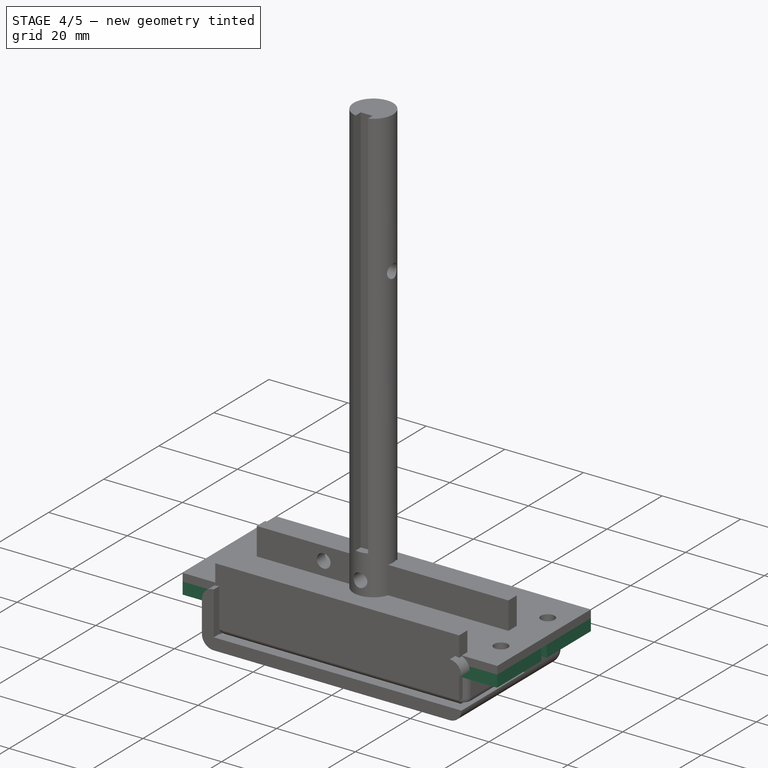
[diagram: stage 4 of 5 — iso view after this stage's code; geometry added in this stage tinted green]
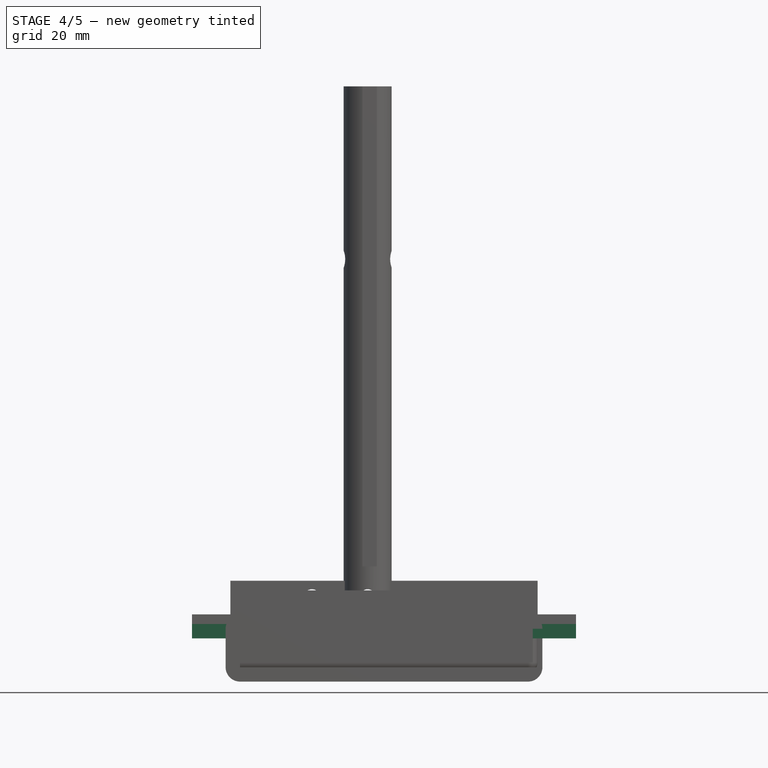
[diagram: stage 4 of 5 — front view after this stage's code; geometry added in this stage tinted green]
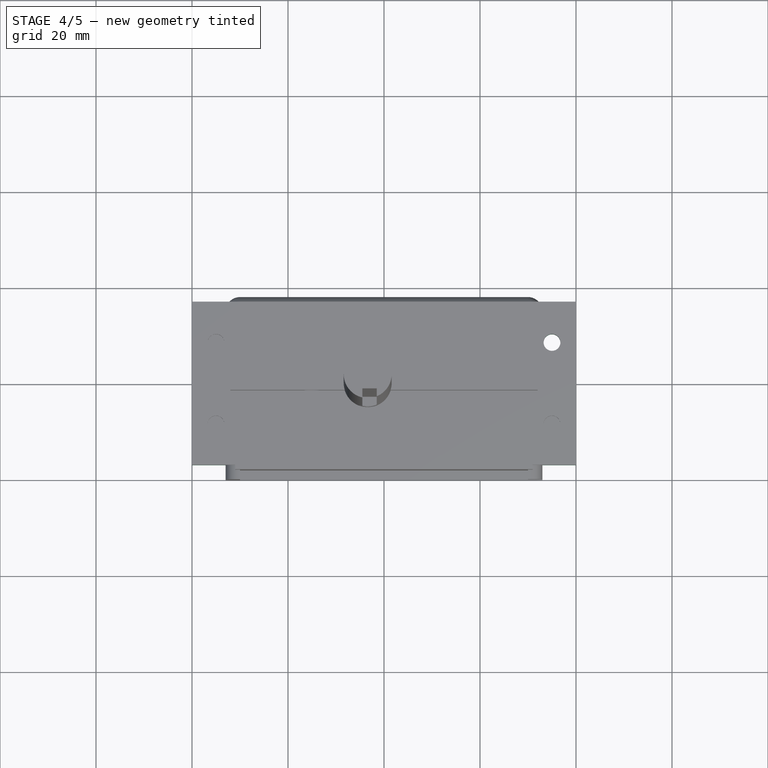
[diagram: stage 4 of 5 — top view after this stage's code; geometry added in this stage tinted green]
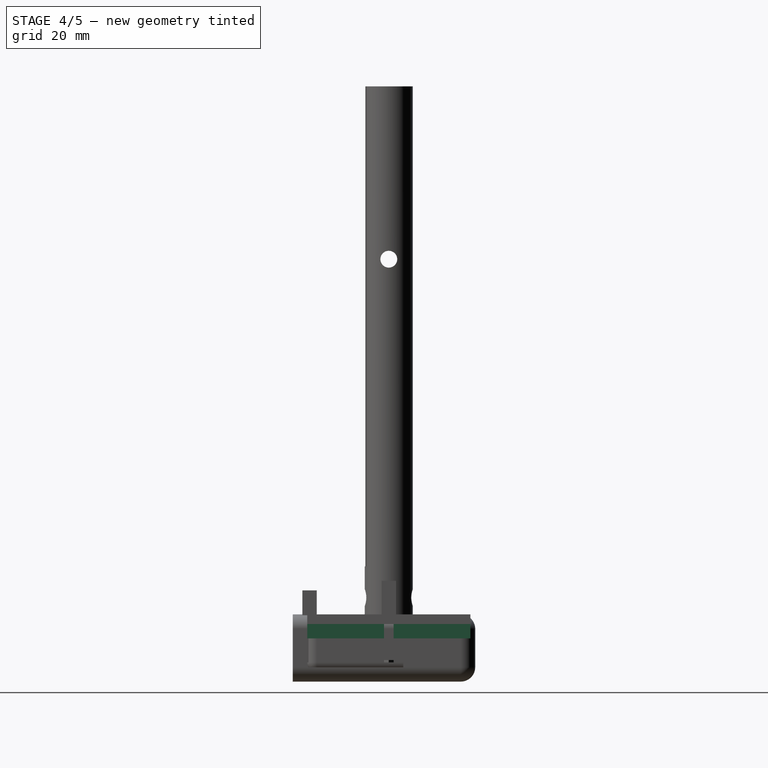
[diagram: stage 4 of 5 — right view after this stage's code; geometry added in this stage tinted green]
FEATURE [Sketcher::SketchObject] CopySketch001
  sketch-geometry (4):
    g0: LineSegment StartX=-30 StartY=15 StartZ=0 EndX=30 EndY=15 EndZ=0
    g1: LineSegment StartX=30 StartY=15 StartZ=0 EndX=30 EndY=-15 EndZ=0
    g2: LineSegment StartX=30 StartY=-15 StartZ=0 EndX=-30 EndY=-15 EndZ=0
    g3: LineSegment StartX=-30 StartY=-15 StartZ=0 EndX=-30 EndY=15 EndZ=0
  constraints (12):
    c: Coincident(g0,g1)
    c: Coincident(g1,g2)
    c: Coincident(g2,g3)
    c: Coincident(g3,g0)
    c: Horizontal(g0)
    c: Horizontal(g2)
    c: Vertical(g1)
    c: Vertical(g3)
    c: DistanceX(g0) = -30
    c: DistanceY(g0) = 15
    c: DistanceX(g1) = 30
    c: DistanceY(g1) = -15
FEATURE [PartDesign::Pad] Pad
  Length = 8
  Length2 = 100
  Profile = -> CopySketch001
  Type = 0
FEATURE [PartDesign::Thickness] Thickness
  Base = -> Pad [Face6]
  BaseFeature = -> Pad
  Join = 0
  Mode = 0
  Value = 2
FEATURE [PartDesign::Body] Body
  Group = -> [Pad,Thickness]
  Origin = -> Origin
  Tip = -> Thickness
FEATURE [Sketcher::SketchObject] Sketch
  MapMode = 5
  Support = -> [XY_Plane001]
  sketch-geometry (4):
    g0: LineSegment StartX=-27 StartY=12 StartZ=0 EndX=-3 EndY=12 EndZ=0
    g1: LineSegment StartX=-3 StartY=12 StartZ=0 EndX=-3 EndY=-12 EndZ=0
    g2: LineSegment StartX=-3 StartY=-12 StartZ=0 EndX=-27 EndY=-12 EndZ=0
    g3: LineSegment StartX=-27 StartY=-12 StartZ=0 EndX=-27 EndY=12 EndZ=0
  constraints (12):
    c: Coincident(g0,g1)
    c: Coincident(g1,g2)
    c: Coincident(g2,g3)
    c: Coincident(g3,g0)
    c: Horizontal(g0)
    c: Horizontal(g2)
    c: Vertical(g1)
    c: Vertical(g3)
    c: DistanceX(g0) = -27
    c: DistanceY(g0) = 12
    c: DistanceX(g1) = -3
    c: DistanceY(g1) = -12
FEATURE [PartDesign::Pad] Pad001
  Length = 10
  Length2 = 100
  Profile = -> Sketch
  Reversed = true
  Type = 0
FEATURE [PartDesign::Body] Body001
  Group = -> [Sketch,Pad001]
  Origin = -> Origin001
  Tip = -> Pad001
FEATURE [Part::Cut] Cut
  Base = -> Body
  Tool = -> Body001
FEATURE [Sketcher::SketchObject] Sketch004
  MapMode = 5
  Support = -> [XY_Plane004]
  sketch-geometry (4):
    g0: LineSegment StartX=30 StartY=1 StartZ=0 EndX=45.26 EndY=1 EndZ=0
    g1: LineSegment StartX=45.26 StartY=1 StartZ=0 EndX=45.26 EndY=-1 EndZ=0
    g2: LineSegment StartX=45.26 StartY=-1 StartZ=0 EndX=30 EndY=-1 EndZ=0
    g3: LineSegment StartX=30 StartY=-1 StartZ=0 EndX=30 EndY=1 EndZ=0
  constraints (12):
    c: Coincident(g0,g1)
    c: Coincident(g1,g2)
    c: Coincident(g2,g3)
    c: Coincident(g3,g0)
    c: Horizontal(g0)
    c: Horizontal(g2)
    c: Vertical(g1)
    c: Vertical(g3)
    c: DistanceX(g0) = 30
    c: DistanceY(g0) = 1
    c: DistanceX(g1) = 45.26
    c: DistanceY(g1) = -1
FEATURE [PartDesign::Pad] Pad004
  Length = 8
  Length2 = 100
  Profile = -> Sketch004
  Type = 0
FEATURE [PartDesign::Body] Body004
  Group = -> [Sketch004,Pad004]
  Origin = -> Origin004
  Tip = -> Pad004
FEATURE [Part::Cut] Cut001  label="Box"
  Base = -> Cut
  Tool = -> Body004
FEATURE [PartDesign::Pad] Pad036
  Length = 0.5
  Length2 = 100
  Profile = -> Sketch036
  Type = 0
FEATURE [PartDesign::Body] Body043
  Group = -> [Sketch041,Pad043]
  Origin = -> Origin042
  Tip = -> Pad043
FEATURE [Sketcher::SketchObject] Sketch043
  MapMode = 5
  Support = -> [XY_Plane041]
  sketch-geometry (1):
    g0: Circle CenterX=35 CenterY=8.5 CenterZ=0 NormalX=0 NormalY=0 NormalZ=1 AngleXU=0 Radius=1.75
  constraints (3):
    c: Radius(g0) = 1.75
    c: DistanceX(g0) = 35
    c: DistanceY(g0) = 8.5
FEATURE [PartDesign::Pad] Pad041
  Length = 12
  Length2 = 100
  Profile = -> Sketch043
  Type = 0
FEATURE [Sketcher::SketchObject] Sketch046
  MapMode = 5
  Support = -> [XY_Plane045]
  sketch-geometry (4):
    g0: LineSegment StartX=30 StartY=17 StartZ=0 EndX=40 EndY=17 EndZ=0
    g1: LineSegment StartX=40 StartY=17 StartZ=0 EndX=40 EndY=-17 EndZ=0
    g2: LineSegment StartX=40 StartY=-17 StartZ=0 EndX=30 EndY=-17 EndZ=0
    g3: LineSegment StartX=30 StartY=-17 StartZ=0 EndX=30 EndY=17 EndZ=0
  constraints (12):
    c: Coincident(g0,g1)
    c: Coincident(g1,g2)
    c: Coincident(g2,g3)
    c: Coincident(g3,g0)
    c: Horizontal(g0)
    c: Horizontal(g2)
    c: Vertical(g1)
    c: Vertical(g3)
    c: DistanceX(g0) = 40
    c: DistanceY(g0) = 17
    c: DistanceX(g2) = 30
    c: DistanceY(g2) = -17
FEATURE [PartDesign::Pad] Pad045
  Length = 3
  Length2 = 100
  Profile = -> Sketch046
  Type = 0
FEATURE [PartDesign::Body] Body045
  Group = -> [Sketch046,Pad045]
  Origin = -> Origin045
  Placement = pos=(0,0,5) rot=(0,0,1;0rad)
  Tip = -> Pad045
FEATURE [Sketcher::SketchObject] Sketch047
  MapMode = 5
  Support = -> [XY_Plane046]
  sketch-geometry (4):
    g0: LineSegment StartX=-30 StartY=17 StartZ=0 EndX=-40 EndY=17 EndZ=0
    g1: LineSegment StartX=-40 StartY=17 StartZ=0 EndX=-40 EndY=-17 EndZ=0
    g2: LineSegment StartX=-40 StartY=-17 StartZ=0 EndX=-30 EndY=-17 EndZ=0
    g3: LineSegment StartX=-30 StartY=-17 StartZ=0 EndX=-30 EndY=17 EndZ=0
  constraints (12):
    c: Coincident(g0,g1)
    c: Coincident(g1,g2)
    c: Coincident(g2,g3)
    c: Coincident(g3,g0)
    c: Horizontal(g0)
    c: Horizontal(g2)
    c: Vertical(g1)
    c: Vertical(g3)
    c: DistanceX(g0) = -40
    c: DistanceY(g0) = 17
    c: DistanceX(g2) = -30
    c: DistanceY(g2) = -17
FEATURE [PartDesign::Pad] Pad046
  Length = 3
  Length2 = 100
  Profile = -> Sketch047
  Type = 0
FEATURE [PartDesign::Body] Body046
  Group = -> [Sketch047,Pad046]
  Origin = -> Origin046
  Placement = pos=(0,0,5) rot=(0,0,1;0rad)
  Tip = -> Pad046
FEATURE [Sketcher::SketchObject] Sketch048
  MapMode = 5
  Support = -> [XY_Plane047]
  sketch-geometry (4):
    g0: LineSegment StartX=30 StartY=1 StartZ=0 EndX=45.26 EndY=1 EndZ=0
    g1: LineSegment StartX=45.26 StartY=1 StartZ=0 EndX=45.26 EndY=-1 EndZ=0
    g2: LineSegment StartX=45.26 StartY=-1 StartZ=0 EndX=30 EndY=-1 EndZ=0
    g3: LineSegment StartX=30 StartY=-1 StartZ=0 EndX=30 EndY=1 EndZ=0
  constraints (12):
    c: Coincident(g0,g1)
    c: Coincident(g1,g2)
    c: Coincident(g2,g3)
    c: Coincident(g3,g0)
    c: Horizontal(g0)
    c: Horizontal(g2)
    c: Vertical(g1)
    c: Vertical(g3)
    c: DistanceX(g0) = 30
    c: DistanceY(g0) = 1
    c: DistanceX(g1) = 45.26
    c: DistanceY(g1) = -1
FEATURE [PartDesign::Pad] Pad047
  Length = 8
  Length2 = 100
  Profile = -> Sketch048
  Type = 0
FEATURE [PartDesign::Body] Body047
  Group = -> [Sketch048,Pad047]
  Origin = -> Origin047
  Tip = -> Pad047
FEATURE [Part::Cut] Cut023
  Base = -> Body045
  Tool = -> Body047
FEATURE [Part::MultiFuse] Fusion003
  Shapes = -> [Cut001,Cut023]
FEATURE [Part::MultiFuse] Fusion004
  Shapes = -> [Body046,Fusion003]
FEATURE [Part::MultiFuse] Fusion005
  Shapes = -> [Body036,Fusion004]
FEATURE [Part::Cut] Cut024
  Base = -> Fusion005
  Tool = -> Body041
FEATURE [PartDesign::Body] Body048
  Group = -> [Sketch049,Pad048]
  Origin = -> Origin048
  Placement = pos=(-11.6,-10,0) rot=(0,0,1;0rad)
  Tip = -> Pad048
FEATURE [Sketcher::SketchObject] Sketch050
  MapMode = 5
  Placement = pos=(0,0,0) rot=(1,0,0;1.5708rad)
  Support = -> [XZ_Plane049]
  sketch-geometry (1):
    g0: Circle CenterX=-3.4 CenterY=13.5 CenterZ=0 NormalX=0 NormalY=0 NormalZ=1 AngleXU=0 Radius=1.75
  constraints (3):
    c: DistanceX(g0) = -3.4
    c: DistanceY(g0) = 13.5
    c: Radius(g0) = 1.75
FEATURE [PartDesign::Pad] Pad049
  Length = 50
  Length2 = 100
  Placement = pos=(0,0,0) rot=(1,0,0;1.5708rad)
  Profile = -> Sketch050
  Reversed = true
  Type = 0
FEATURE [PartDesign::Body] Body049
  Group = -> [Sketch050,Pad049]
  Origin = -> Origin049
  Placement = pos=(0,-10,0) rot=(0,0,1;0rad)
  Tip = -> Pad049
FEATURE [Part::Cut] Cut028
  Base = -> Cut022
  Tool = -> Body048
FEATURE [Part::Cut] Cut029  label="Lid"
  Base = -> Cut028
  Tool = -> Body049
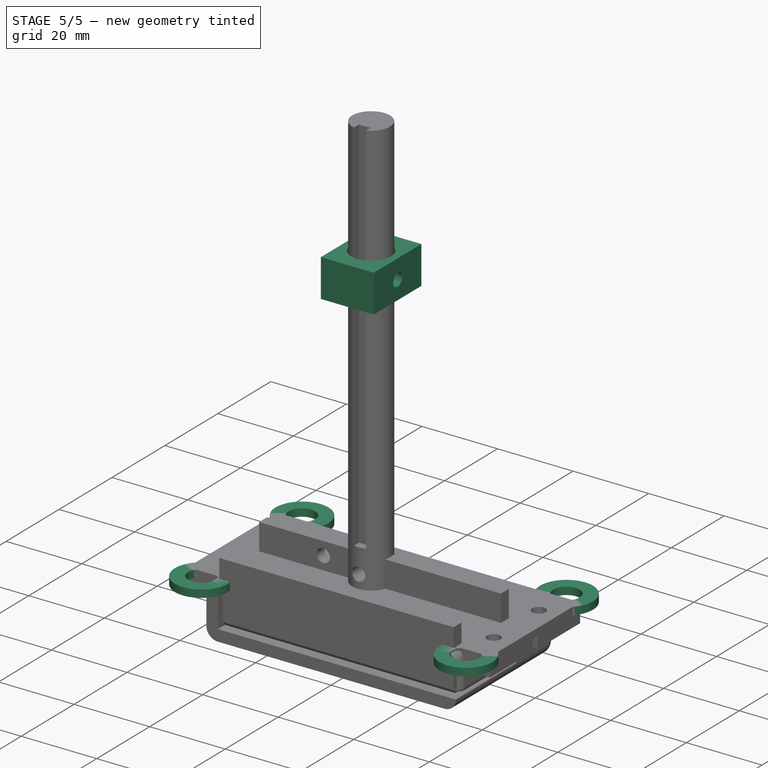
[diagram: stage 5 of 5 — iso view after this stage's code; geometry added in this stage tinted green]
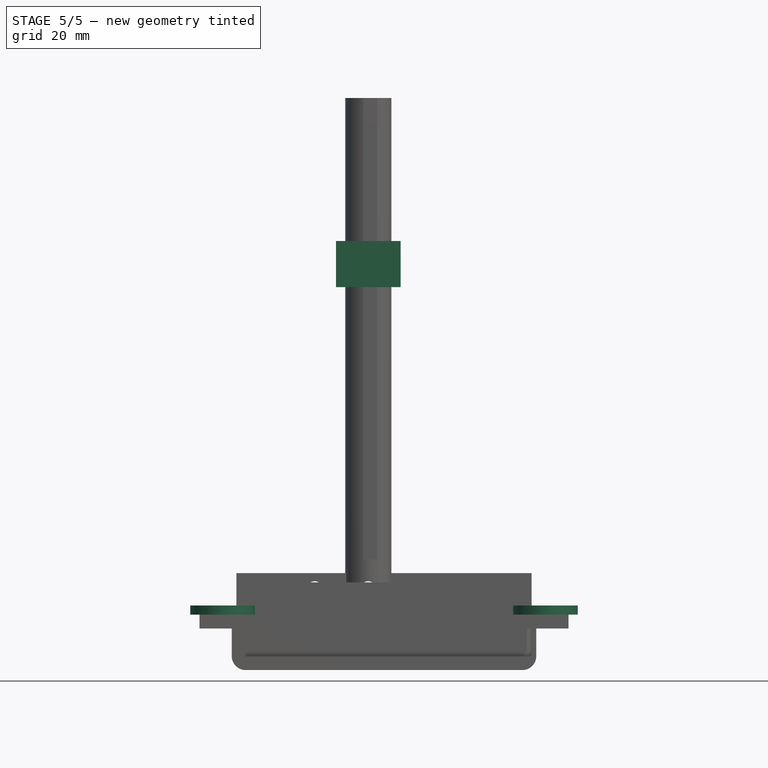
[diagram: stage 5 of 5 — front view after this stage's code; geometry added in this stage tinted green]
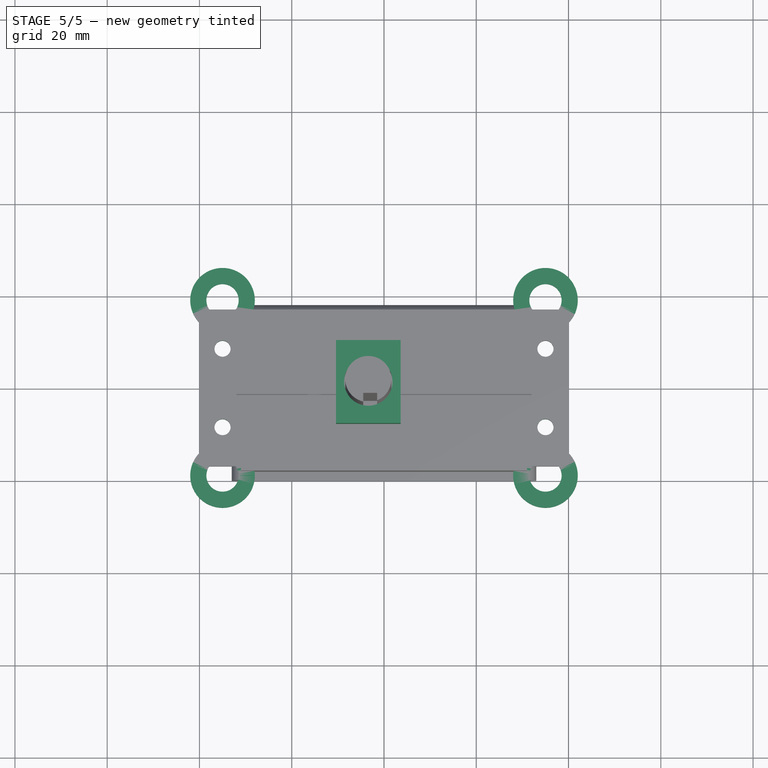
[diagram: stage 5 of 5 — top view after this stage's code; geometry added in this stage tinted green]
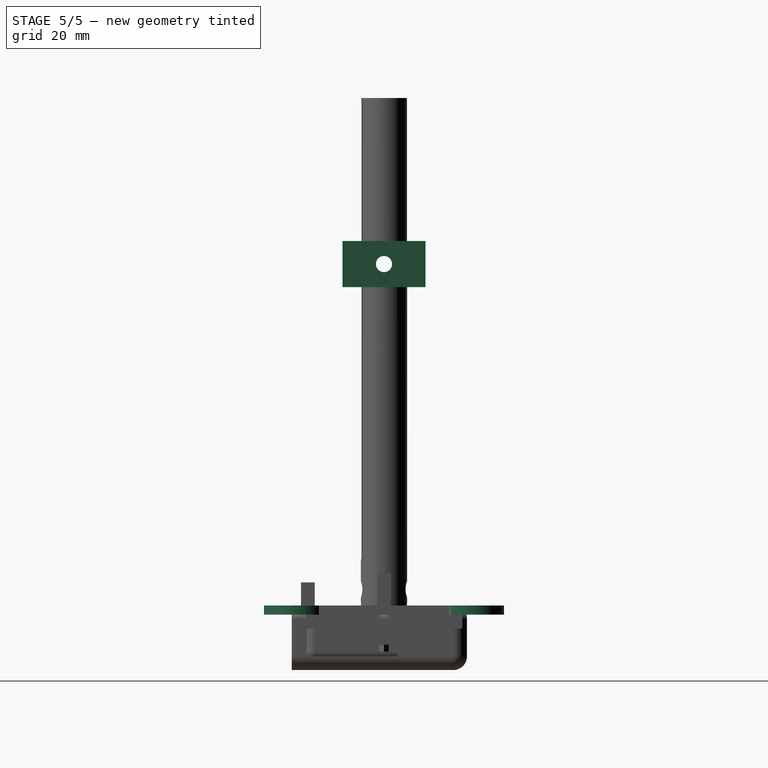
[diagram: stage 5 of 5 — right view after this stage's code; geometry added in this stage tinted green]
FEATURE [Sketcher::SketchObject] Sketch002
  MapMode = 5
  Support = -> [XY_Plane002]
  sketch-geometry (4):
    g0: LineSegment StartX=-29 StartY=14 StartZ=0 EndX=-1 EndY=14 EndZ=0
    g1: LineSegment StartX=-1 StartY=14 StartZ=0 EndX=-1 EndY=-14 EndZ=0
    g2: LineSegment StartX=-1 StartY=-14 StartZ=0 EndX=-29 EndY=-14 EndZ=0
    g3: LineSegment StartX=-29 StartY=-14 StartZ=0 EndX=-29 EndY=14 EndZ=0
  constraints (12):
    c: Coincident(g0,g1)
    c: Coincident(g1,g2)
    c: Coincident(g2,g3)
    c: Coincident(g3,g0)
    c: Horizontal(g0)
    c: Horizontal(g2)
    c: Vertical(g1)
    c: Vertical(g3)
    c: DistanceX(g0) = -29
    c: DistanceY(g0) = 14
    c: DistanceX(g1) = -1
    c: DistanceY(g1) = -14
FEATURE [PartDesign::Pad] Pad002
  Length = 0.5
  Length2 = 100
  Profile = -> Sketch002
  Type = 0
FEATURE [PartDesign::Body] Body002
  Group = -> [Sketch002,Pad002]
  Origin = -> Origin002
  Placement = pos=(0,0,0.5) rot=(0,0,1;0rad)
  Tip = -> Pad002
FEATURE [Sketcher::SketchObject] Sketch003
  MapMode = 5
  Support = -> [XY_Plane003]
  sketch-geometry (4):
    g0: LineSegment StartX=-1 StartY=-14 StartZ=0 EndX=-1 EndY=14 EndZ=0
    g1: LineSegment StartX=-1 StartY=14 StartZ=0 EndX=28 EndY=0 EndZ=0
    g2: LineSegment StartX=28 StartY=0 StartZ=0 EndX=-1 EndY=-14 EndZ=0
    g3: Circle [constr] CenterX=9.45855 CenterY=1.37158 CenterZ=0 NormalX=0 NormalY=0 NormalZ=1 AngleXU=0 Radius=18.5921
  constraints (9):
    c: Coincident(g0,g1)
    c: Coincident(g1,g2)
    c: Coincident(g2,g0)
    c: DistanceX(g0) = -1
    c: DistanceY(g0) = -14
    c: DistanceX(g1) = 28
    c: DistanceY(g1) = 0
    c: DistanceX(g0) = -1
    c: Equal(g1,g2)
FEATURE [PartDesign::Pad] Pad003
  Length = 1.5
  Length2 = 100
  Profile = -> Sketch003
  Type = 0
FEATURE [PartDesign::Body] Body003
  Group = -> [Sketch003,Pad003]
  Origin = -> Origin003
  Tip = -> Pad003
FEATURE [Part::MultiFuse] Fusion  label="Scinti"
  Shapes = -> [Body002,Body003]
FEATURE [PartDesign::Body] Body027
  Group = -> [Sketch027,Pad027]
  Origin = -> Origin027
  Placement = pos=(0,0,10) rot=(0,0,1;0rad)
  Tip = -> Pad027
FEATURE [Sketcher::SketchObject] Sketch028
  MapMode = 5
  Support = -> [XY_Plane028]
  sketch-geometry (4):
    g0: LineSegment StartX=-7 StartY=9 StartZ=0 EndX=7 EndY=9 EndZ=0
    g1: LineSegment StartX=7 StartY=9 StartZ=0 EndX=7 EndY=-9 EndZ=0
    g2: LineSegment StartX=7 StartY=-9 StartZ=0 EndX=-7 EndY=-9 EndZ=0
    g3: LineSegment StartX=-7 StartY=-9 StartZ=0 EndX=-7 EndY=9 EndZ=0
  constraints (12):
    c: Coincident(g0,g1)
    c: Coincident(g1,g2)
    c: Coincident(g2,g3)
    c: Coincident(g3,g0)
    c: Horizontal(g0)
    c: Horizontal(g2)
    c: Vertical(g1)
    c: Vertical(g3)
    c: DistanceX(g0) = -7
    c: DistanceY(g0) = 9
    c: DistanceX(g1) = 7
    c: DistanceY(g1) = -9
FEATURE [PartDesign::Pad] Pad028
  Length = 10
  Length2 = 100
  Profile = -> Sketch028
  Type = 0
FEATURE [PartDesign::Body] Body028
  Group = -> [Sketch028,Pad028]
  Origin = -> Origin028
  Placement = pos=(0,0,80) rot=(0,0,1;0rad)
  Tip = -> Pad028
FEATURE [Sketcher::SketchObject] Sketch029
  MapMode = 5
  Support = -> [XY_Plane029]
  sketch-geometry (1):
    g0: Circle CenterX=0 CenterY=0 CenterZ=0 NormalX=0 NormalY=0 NormalZ=1 AngleXU=0 Radius=5.25
  constraints (3):
    c: Radius(g0) = 5.25
    c: DistanceX(g0) = 0
    c: DistanceY(g0) = 0
FEATURE [PartDesign::Pad] Pad029
  Length = 110
  Length2 = 100
  Profile = -> Sketch029
  Type = 0
FEATURE [PartDesign::Body] Body029
  Group = -> [Sketch029,Pad029]
  Origin = -> Origin029
  Placement = pos=(0,0,10) rot=(0,0,1;0rad)
  Tip = -> Pad029
FEATURE [Part::Cut] Cut012
  Base = -> Body028
  Placement = pos=(-3.4,0,0) rot=(0,0,1;0rad)
  Tool = -> Body029
FEATURE [PartDesign::Body] Body031
  Group = -> [Sketch031,Pad031]
  Origin = -> Origin031
  Placement = pos=(0,-10,0) rot=(0,0,1;0rad)
  Tip = -> Pad031
FEATURE [Sketcher::SketchObject] Sketch032
  MapMode = 5
  Placement = pos=(0,0,0) rot=(1,0,0;1.5708rad)
  Support = -> [XZ_Plane032]
  sketch-geometry (1):
    g0: Circle CenterX=-3.4 CenterY=13.5 CenterZ=0 NormalX=0 NormalY=0 NormalZ=1 AngleXU=0 Radius=1.75
  constraints (3):
    c: DistanceX(g0) = -3.4
    c: DistanceY(g0) = 13.5
    c: Radius(g0) = 1.75
FEATURE [PartDesign::Pad] Pad032
  Length = 50
  Length2 = 100
  Placement = pos=(0,0,0) rot=(1,0,0;1.5708rad)
  Profile = -> Sketch032
  Reversed = true
  Type = 0
FEATURE [PartDesign::Body] Body032
  Group = -> [Sketch032,Pad032]
  Origin = -> Origin032
  Placement = pos=(0,-10,0) rot=(0,0,1;0rad)
  Tip = -> Pad032
FEATURE [Part::Cut] Cut014
  Tool = -> Body032
FEATURE [Sketcher::SketchObject] Sketch033
  MapMode = 5
  Placement = pos=(0,0,0) rot=(1,0,0;1.5708rad)
  Support = -> [XZ_Plane033]
  sketch-geometry (1):
    g0: Circle CenterX=-3.4 CenterY=13.5 CenterZ=0 NormalX=0 NormalY=0 NormalZ=1 AngleXU=0 Radius=1.75
  constraints (3):
    c: DistanceX(g0) = -3.4
    c: DistanceY(g0) = 13.5
    c: Radius(g0) = 1.75
FEATURE [PartDesign::Pad] Pad033
  Length = 50
  Length2 = 100
  Placement = pos=(0,0,0) rot=(1,0,0;1.5708rad)
  Profile = -> Sketch033
  Reversed = true
  Type = 0
FEATURE [PartDesign::Body] Body033
  Group = -> [Sketch033,Pad033]
  Origin = -> Origin033
  Placement = pos=(-11.6,-10,0) rot=(0,0,1;0rad)
  Tip = -> Pad033
FEATURE [Sketcher::SketchObject] Sketch034
  MapMode = 5
  Placement = pos=(0,0,0) rot=(0.57735,0.57735,0.57735;2.0944rad)
  Support = -> [YZ_Plane034]
  sketch-geometry (1):
    g0: Circle CenterX=0 CenterY=85 CenterZ=0 NormalX=0 NormalY=0 NormalZ=1 AngleXU=0 Radius=1.75
  constraints (3):
    c: Radius(g0) = 1.75
    c: DistanceX(g0) = 0
    c: DistanceY(g0) = 85
FEATURE [PartDesign::Pad] Pad034
  Length = 50
  Length2 = 100
  Placement = pos=(0,0,0) rot=(0.57735,0.57735,0.57735;2.0944rad)
  Profile = -> Sketch034
  Reversed = true
  Type = 0
FEATURE [PartDesign::Body] Body035
  Group = -> [Sketch035,Pad035]
  Origin = -> Origin035
  Placement = pos=(10,0,0) rot=(0,0,1;0rad)
  Tip = -> Pad035
FEATURE [Part::Cut] Cut017  label="Stopper"
  Base = -> Cut012
  Placement = pos=(0,0,-1) rot=(0,0,1;0rad)
  Tool = -> Body034
FEATURE [Sketcher::SketchObject] Sketch036
  MapMode = 5
  Support = -> [XY_Plane036]
  sketch-geometry (4):
    g0: LineSegment StartX=-30 StartY=15 StartZ=0 EndX=-27 EndY=15 EndZ=0
    g1: LineSegment StartX=-27 StartY=15 StartZ=0 EndX=-27 EndY=-15 EndZ=0
    g2: LineSegment StartX=-27 StartY=-15 StartZ=0 EndX=-30 EndY=-15 EndZ=0
    g3: LineSegment StartX=-30 StartY=-15 StartZ=0 EndX=-30 EndY=15 EndZ=0
  constraints (12):
    c: Coincident(g0,g1)
    c: Coincident(g1,g2)
    c: Coincident(g2,g3)
    c: Coincident(g3,g0)
    c: Horizontal(g0)
    c: Horizontal(g2)
    c: Vertical(g1)
    c: Vertical(g3)
    c: DistanceX(g0) = -27
    c: DistanceY(g0) = 15
    c: DistanceX(g2) = -30
    c: DistanceY(g2) = -15
FEATURE [Part::Cut] Cut016
  Base = -> Cut014
  Tool = -> Body033
FEATURE [PartDesign::Body] Body040
  Group = -> [Sketch040,Pad040]
  Origin = -> Origin040
  Tip = -> Pad040
FEATURE [Sketcher::SketchObject] Sketch041
  MapMode = 5
  Support = -> [XY_Plane043]
  sketch-geometry (1):
    g0: Circle CenterX=-35 CenterY=8.5 CenterZ=0 NormalX=0 NormalY=0 NormalZ=1 AngleXU=0 Radius=1.75
  constraints (3):
    c: Radius(g0) = 1.75
    c: DistanceX(g0) = -35
    c: DistanceY(g0) = 8.5
FEATURE [Sketcher::SketchObject] Sketch042
  MapMode = 5
  Support = -> [XY_Plane044]
  sketch-geometry (1):
    g0: Circle CenterX=-35 CenterY=-8.5 CenterZ=0 NormalX=0 NormalY=0 NormalZ=1 AngleXU=0 Radius=1.75
  constraints (3):
    c: Radius(g0) = 1.75
    c: DistanceX(g0) = -35
    c: DistanceY(g0) = -8.5
FEATURE [PartDesign::Pad] Pad043
  Length = 12
  Length2 = 100
  Profile = -> Sketch041
  Type = 0
FEATURE [PartDesign::Body] Body041
  Group = -> [Sketch043,Pad041]
  Origin = -> Origin043
  Tip = -> Pad041
FEATURE [Sketcher::SketchObject] Sketch044
  MapMode = 5
  Support = -> [XY_Plane042]
  sketch-geometry (1):
    g0: Circle CenterX=35 CenterY=-8.5 CenterZ=0 NormalX=0 NormalY=0 NormalZ=1 AngleXU=0 Radius=1.75
  constraints (3):
    c: Radius(g0) = 1.75
    c: DistanceX(g0) = 35
    c: DistanceY(g0) = -8.5
FEATURE [PartDesign::Pad] Pad042
  Length = 12
  Length2 = 100
  Profile = -> Sketch044
  Type = 0
FEATURE [PartDesign::Body] Body042
  Group = -> [Sketch044,Pad042]
  Origin = -> Origin041
  Tip = -> Pad042
FEATURE [PartDesign::Pad] Pad044
  Length = 12
  Length2 = 100
  Profile = -> Sketch042
  Type = 0
FEATURE [Part::Cut] Cut025
  Base = -> Cut024
  Tool = -> Body042
FEATURE [Part::Cut] Cut026
  Base = -> Cut025
  Tool = -> Body043
FEATURE [Part::Cut] Cut027  label="Box001"
  Base = -> Cut026
  Tool = -> Body044
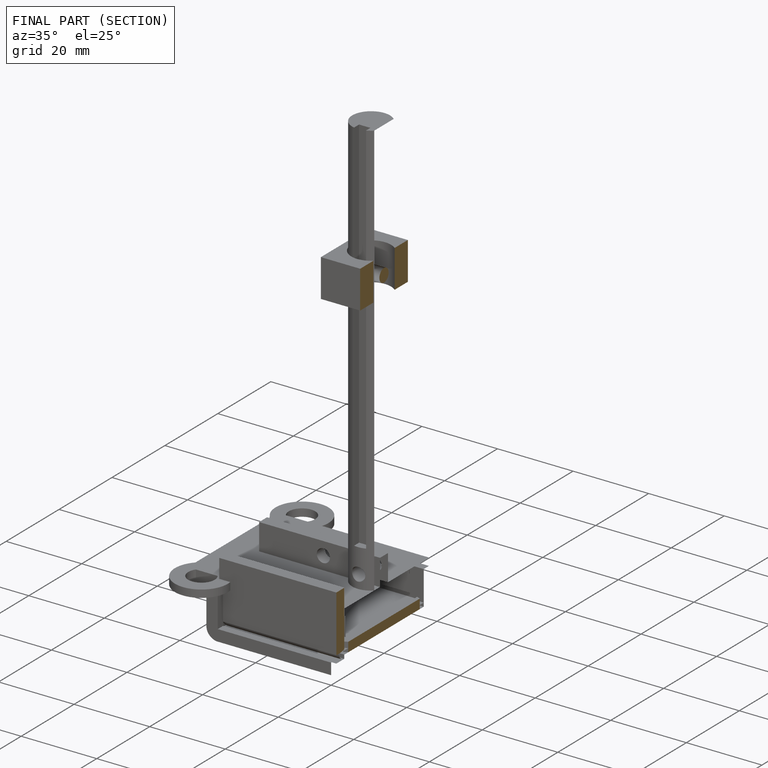
[diagram: finished part — half-section view (interior)]
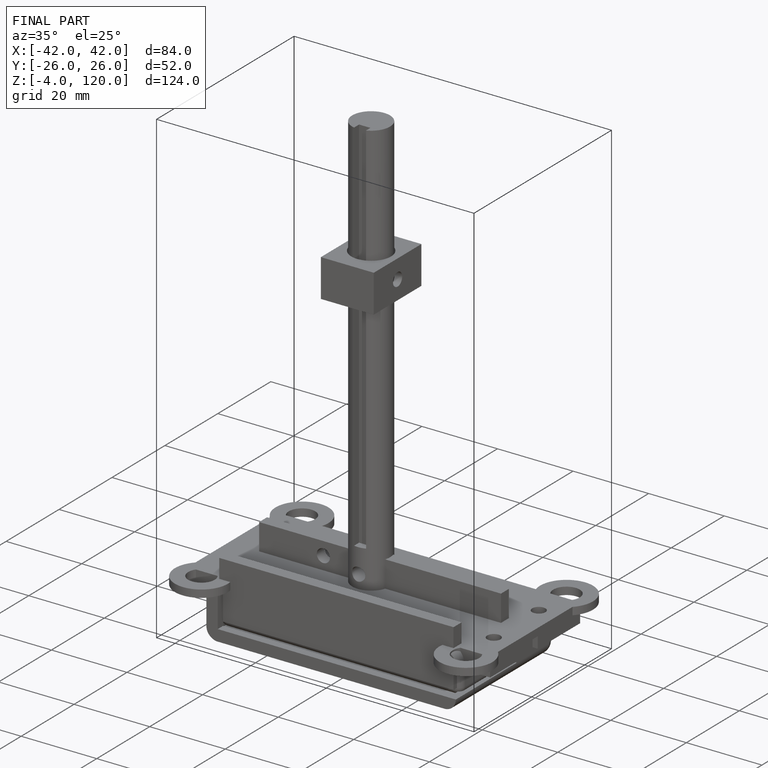
[diagram: finished part — iso view with bounding-box wireframe]
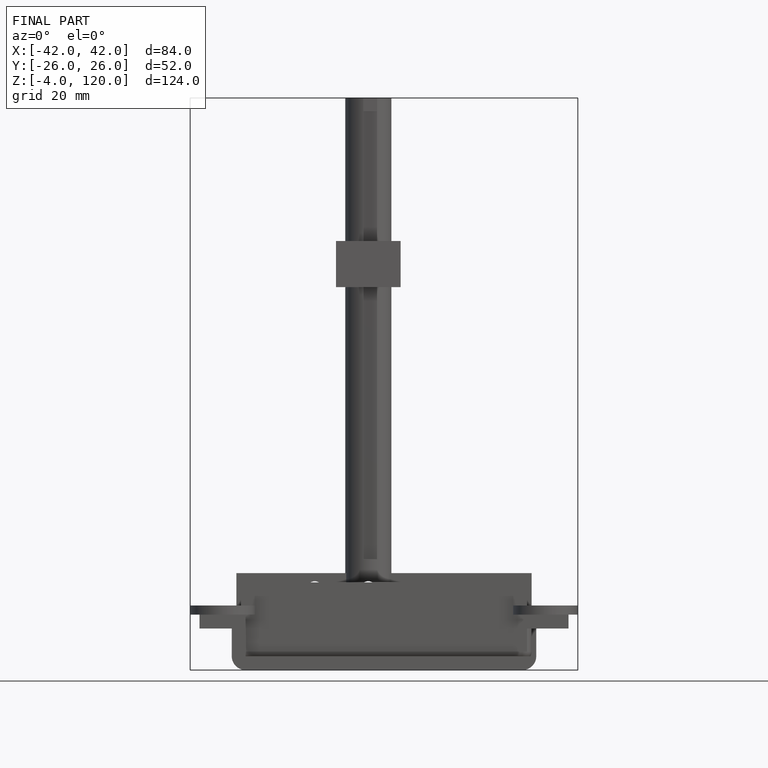
[diagram: finished part — front view with bounding-box wireframe]
